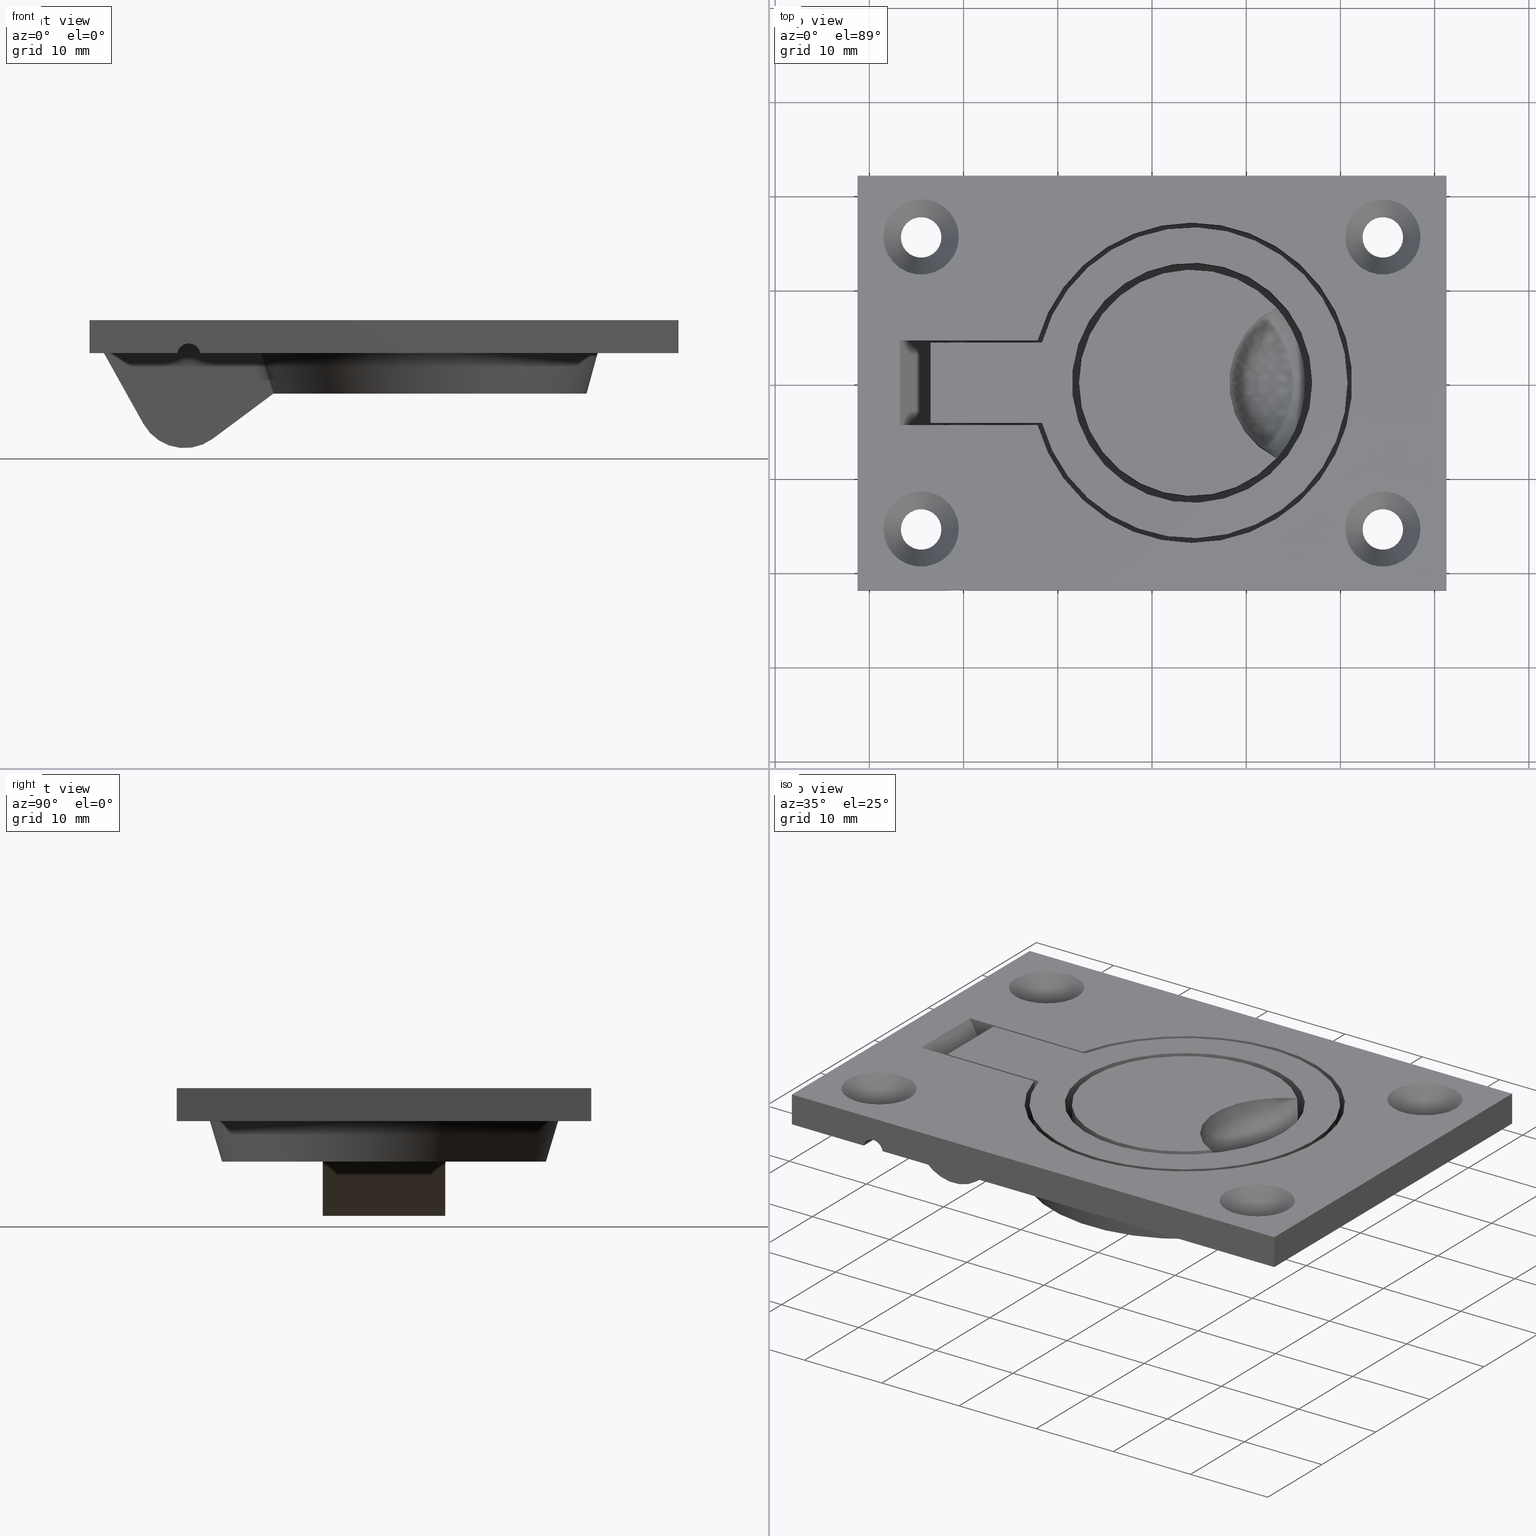
[diagram: canonical four-view strip — front | top / right | iso, engineering-drawing reading convention]
A machine part, canonical four-view strip (front | top / right | iso — engineering-drawing reading convention). The complete STEP part file that produces these views, byte-faithful:
ISO-10303-21;
HEADER;
/* Generated by software containing ST-Developer
 * from STEP Tools, Inc. (www.steptools.com) 
 */

FILE_DESCRIPTION(
/* description */ (''),
/* implementation_level */ '2;1');

FILE_NAME(
/* name */ '\\\\NAS\\db20\\A-MS316-3\\DR_A-MS316-3.stp',
/* time_stamp */ '2017-07-18T13:17:52+09:00',
/* author */ ('user'),
/* organization */ (''),
/* preprocessor_version */ 'ST-DEVELOPER v15.6',
/* originating_system */ 'Autodesk Inventor 2015',
/* authorisation */ '');

FILE_SCHEMA (('AUTOMOTIVE_DESIGN { 1 0 10303 214 3 1 1 }'));
ENDSEC;

DATA;
#10=MECHANICAL_DESIGN_GEOMETRIC_PRESENTATION_REPRESENTATION('',(#14,#15,
#16),#1370);
#11=ELLIPSE('',#834,26.2423795239014,20.2677319446985);
#12=SHAPE_REPRESENTATION_RELATIONSHIP('SRR','None',#1379,#13);
#13=ADVANCED_BREP_SHAPE_REPRESENTATION($,(#17,#18,#19),#1369);
#14=STYLED_ITEM('',(#1388),#17);
#15=STYLED_ITEM('',(#1388),#18);
#16=STYLED_ITEM('',(#1388),#19);
#17=MANIFOLD_SOLID_BREP('\X2\C194B9ACB4DC\X0\1',#764);
#18=MANIFOLD_SOLID_BREP('\X2\C194B9ACB4DC\X0\2',#765);
#19=MANIFOLD_SOLID_BREP('\X2\C194B9ACB4DC\X0\3',#766);
#20=(
BOUNDED_CURVE()
B_SPLINE_CURVE(2,(#1274,#1275,#1276),.UNSPECIFIED.,.F.,.F.)
B_SPLINE_CURVE_WITH_KNOTS((3,3),(0.,0.450455260846372),.UNSPECIFIED.)
CURVE()
GEOMETRIC_REPRESENTATION_ITEM()
RATIONAL_B_SPLINE_CURVE((1.,1.00070532080398,1.))
REPRESENTATION_ITEM('')
);
#21=(
BOUNDED_CURVE()
B_SPLINE_CURVE(2,(#1299,#1300,#1301),.UNSPECIFIED.,.F.,.F.)
B_SPLINE_CURVE_WITH_KNOTS((3,3),(0.,0.450455260846372),.UNSPECIFIED.)
CURVE()
GEOMETRIC_REPRESENTATION_ITEM()
RATIONAL_B_SPLINE_CURVE((1.,1.0007053207992,1.))
REPRESENTATION_ITEM('')
);
#22=(
BOUNDED_CURVE()
B_SPLINE_CURVE(2,(#1327,#1328,#1329),.UNSPECIFIED.,.F.,.F.)
B_SPLINE_CURVE_WITH_KNOTS((3,3),(0.,0.292124848595165),.UNSPECIFIED.)
CURVE()
GEOMETRIC_REPRESENTATION_ITEM()
RATIONAL_B_SPLINE_CURVE((1.,1.00096312354482,1.00082977396516))
REPRESENTATION_ITEM('')
);
#23=(
BOUNDED_CURVE()
B_SPLINE_CURVE(2,(#1345,#1346,#1347),.UNSPECIFIED.,.F.,.F.)
B_SPLINE_CURVE_WITH_KNOTS((3,3),(0.221070255649497,0.513195104244662),
 .UNSPECIFIED.)
CURVE()
GEOMETRIC_REPRESENTATION_ITEM()
RATIONAL_B_SPLINE_CURVE((1.00082977396516,1.00096312354482,1.))
REPRESENTATION_ITEM('')
);
#24=SPHERICAL_SURFACE('',#798,13.7779069767442);
#25=B_SPLINE_CURVE_WITH_KNOTS('',3,(#1157,#1158,#1159,#1160,#1161,#1162,
#1163,#1164,#1165,#1166,#1167,#1168,#1169,#1170,#1171,#1172,#1173,#1174,
#1175,#1176,#1177,#1178),.UNSPECIFIED.,.F.,.F.,(4,2,2,2,2,2,2,2,2,2,4),
(-0.00108928091295515,0.,0.162507191926981,0.325539082900519,0.65250393345308,
0.993488546076933,1.33447315870079,1.6614380092534,1.82446990022695,1.98697709215395,
1.98806637306688),.UNSPECIFIED.);
#26=B_SPLINE_CURVE_WITH_KNOTS('',3,(#1189,#1190,#1191,#1192,#1193,#1194,
#1195,#1196,#1197,#1198,#1199,#1200),.UNSPECIFIED.,.F.,.F.,(4,2,2,2,2,4),
(1.27906537034679,1.35564874410053,1.63746776703437,1.91928678996821,2.16576716136284,
2.41224753275747),.UNSPECIFIED.);
#27=B_SPLINE_CURVE_WITH_KNOTS('',3,(#1201,#1202,#1203,#1204,#1205,#1206,
#1207,#1208,#1209,#1210,#1211,#1212),.UNSPECIFIED.,.F.,.F.,(4,2,2,2,2,4),
(2.41259754843021,2.65909916029841,2.9056007721666,3.18744847210548,3.46929617204436,
3.54577790521519),.UNSPECIFIED.);
#28=(
BOUNDED_SURFACE()
B_SPLINE_SURFACE(2,2,((#1130,#1131,#1132,#1133,#1134),(#1135,#1136,#1137,
#1138,#1139),(#1140,#1141,#1142,#1143,#1144),(#1145,#1146,#1147,#1148,#1149),
(#1150,#1151,#1152,#1153,#1154)),.UNSPECIFIED.,.F.,.F.,.F.)
B_SPLINE_SURFACE_WITH_KNOTS((3,2,3),(3,2,3),(-1.11719863068712,0.,1.11719863068712),
(-1.5707963267949,-0.456644587660423,0.657507151474051),.UNSPECIFIED.)
GEOMETRIC_REPRESENTATION_ITEM()
RATIONAL_B_SPLINE_SURFACE(((1.,0.848804744285426,1.,0.848804744285426,1.),
(0.847998304005088,0.719784983585514,0.847998304005088,0.719784983585514,
0.847998304005088),(1.,0.848804744285426,1.,0.848804744285426,1.),(0.847998304005089,
0.719784983585514,0.847998304005089,0.719784983585514,0.847998304005089),
(1.,0.848804744285426,1.,0.848804744285426,1.)))
REPRESENTATION_ITEM('')
SURFACE()
);
#29=FACE_BOUND('',#138,.T.);
#30=FACE_BOUND('',#140,.T.);
#31=FACE_BOUND('',#142,.T.);
#32=FACE_BOUND('',#144,.T.);
#33=FACE_BOUND('',#146,.T.);
#34=FACE_BOUND('',#148,.T.);
#35=FACE_BOUND('',#150,.T.);
#36=FACE_BOUND('',#152,.T.);
#37=FACE_BOUND('',#159,.T.);
#38=FACE_BOUND('',#162,.T.);
#39=FACE_BOUND('',#170,.T.);
#40=FACE_BOUND('',#171,.T.);
#41=FACE_BOUND('',#172,.T.);
#42=FACE_BOUND('',#173,.T.);
#43=FACE_BOUND('',#174,.T.);
#44=FACE_BOUND('',#180,.T.);
#45=FACE_BOUND('',#183,.T.);
#46=FACE_BOUND('',#184,.T.);
#47=FACE_BOUND('',#185,.T.);
#48=FACE_BOUND('',#186,.T.);
#49=FACE_BOUND('',#197,.T.);
#50=FACE_BOUND('',#199,.T.);
#51=FACE_BOUND('',#201,.T.);
#52=FACE_BOUND('',#203,.T.);
#53=FACE_BOUND('',#205,.T.);
#54=CONICAL_SURFACE('',#772,3.075,30.);
#55=CONICAL_SURFACE('',#777,3.075,30.);
#56=CONICAL_SURFACE('',#782,3.075,30.);
#57=CONICAL_SURFACE('',#787,3.075,30.);
#58=CONICAL_SURFACE('',#799,11.125,27.6210749830755);
#59=CONICAL_SURFACE('',#829,17.875,16.209024927808);
#60=CONICAL_SURFACE('',#844,15.6264714377611,20.);
#61=PLANE('',#771);
#62=PLANE('',#793);
#63=PLANE('',#795);
#64=PLANE('',#806);
#65=PLANE('',#807);
#66=PLANE('',#810);
#67=PLANE('',#813);
#68=PLANE('',#815);
#69=PLANE('',#817);
#70=PLANE('',#818);
#71=PLANE('',#820);
#72=PLANE('',#823);
#73=PLANE('',#824);
#74=PLANE('',#826);
#75=PLANE('',#827);
#76=PLANE('',#830);
#77=PLANE('',#831);
#78=PLANE('',#832);
#79=PLANE('',#833);
#80=PLANE('',#835);
#81=PLANE('',#837);
#82=PLANE('',#840);
#83=PLANE('',#841);
#84=PLANE('',#846);
#85=PLANE('',#852);
#86=PLANE('',#853);
#87=FACE_OUTER_BOUND('',#135,.T.);
#88=FACE_OUTER_BOUND('',#136,.T.);
#89=FACE_OUTER_BOUND('',#137,.T.);
#90=FACE_OUTER_BOUND('',#139,.T.);
#91=FACE_OUTER_BOUND('',#141,.T.);
#92=FACE_OUTER_BOUND('',#143,.T.);
#93=FACE_OUTER_BOUND('',#145,.T.);
#94=FACE_OUTER_BOUND('',#147,.T.);
#95=FACE_OUTER_BOUND('',#149,.T.);
#96=FACE_OUTER_BOUND('',#151,.T.);
#97=FACE_OUTER_BOUND('',#153,.T.);
#98=FACE_OUTER_BOUND('',#154,.T.);
#99=FACE_OUTER_BOUND('',#155,.T.);
#100=FACE_OUTER_BOUND('',#156,.T.);
#101=FACE_OUTER_BOUND('',#157,.T.);
#102=FACE_OUTER_BOUND('',#158,.T.);
#103=FACE_OUTER_BOUND('',#160,.T.);
#104=FACE_OUTER_BOUND('',#161,.T.);
#105=FACE_OUTER_BOUND('',#163,.T.);
#106=FACE_OUTER_BOUND('',#164,.T.);
#107=FACE_OUTER_BOUND('',#165,.T.);
#108=FACE_OUTER_BOUND('',#166,.T.);
#109=FACE_OUTER_BOUND('',#167,.T.);
#110=FACE_OUTER_BOUND('',#168,.T.);
#111=FACE_OUTER_BOUND('',#169,.T.);
#112=FACE_OUTER_BOUND('',#175,.T.);
#113=FACE_OUTER_BOUND('',#176,.T.);
#114=FACE_OUTER_BOUND('',#177,.T.);
#115=FACE_OUTER_BOUND('',#178,.T.);
#116=FACE_OUTER_BOUND('',#179,.T.);
#117=FACE_OUTER_BOUND('',#181,.T.);
#118=FACE_OUTER_BOUND('',#182,.T.);
#119=FACE_OUTER_BOUND('',#187,.T.);
#120=FACE_OUTER_BOUND('',#188,.T.);
#121=FACE_OUTER_BOUND('',#189,.T.);
#122=FACE_OUTER_BOUND('',#190,.T.);
#123=FACE_OUTER_BOUND('',#191,.T.);
#124=FACE_OUTER_BOUND('',#192,.T.);
#125=FACE_OUTER_BOUND('',#193,.T.);
#126=FACE_OUTER_BOUND('',#194,.T.);
#127=FACE_OUTER_BOUND('',#195,.T.);
#128=FACE_OUTER_BOUND('',#196,.T.);
#129=FACE_OUTER_BOUND('',#198,.T.);
#130=FACE_OUTER_BOUND('',#200,.T.);
#131=FACE_OUTER_BOUND('',#202,.T.);
#132=FACE_OUTER_BOUND('',#204,.T.);
#133=FACE_OUTER_BOUND('',#206,.T.);
#134=FACE_OUTER_BOUND('',#207,.T.);
#135=EDGE_LOOP('',(#511,#512,#513,#514));
#136=EDGE_LOOP('',(#515,#516,#517,#518,#519,#520));
#137=EDGE_LOOP('',(#521));
#138=EDGE_LOOP('',(#522));
#139=EDGE_LOOP('',(#523));
#140=EDGE_LOOP('',(#524));
#141=EDGE_LOOP('',(#525));
#142=EDGE_LOOP('',(#526));
#143=EDGE_LOOP('',(#527));
#144=EDGE_LOOP('',(#528));
#145=EDGE_LOOP('',(#529));
#146=EDGE_LOOP('',(#530));
#147=EDGE_LOOP('',(#531));
#148=EDGE_LOOP('',(#532));
#149=EDGE_LOOP('',(#533));
#150=EDGE_LOOP('',(#534));
#151=EDGE_LOOP('',(#535));
#152=EDGE_LOOP('',(#536));
#153=EDGE_LOOP('',(#537,#538));
#154=EDGE_LOOP('',(#539,#540));
#155=EDGE_LOOP('',(#541,#542));
#156=EDGE_LOOP('',(#543,#544,#545));
#157=EDGE_LOOP('',(#546,#547,#548,#549));
#158=EDGE_LOOP('',(#550,#551));
#159=EDGE_LOOP('',(#552));
#160=EDGE_LOOP('',(#553,#554,#555,#556));
#161=EDGE_LOOP('',(#557,#558,#559,#560));
#162=EDGE_LOOP('',(#561));
#163=EDGE_LOOP('',(#562,#563,#564,#565,#566,#567,#568));
#164=EDGE_LOOP('',(#569,#570,#571,#572,#573,#574,#575));
#165=EDGE_LOOP('',(#576,#577,#578,#579));
#166=EDGE_LOOP('',(#580,#581,#582,#583));
#167=EDGE_LOOP('',(#584,#585,#586,#587));
#168=EDGE_LOOP('',(#588,#589,#590,#591));
#169=EDGE_LOOP('',(#592,#593,#594,#595));
#170=EDGE_LOOP('',(#596));
#171=EDGE_LOOP('',(#597));
#172=EDGE_LOOP('',(#598));
#173=EDGE_LOOP('',(#599));
#174=EDGE_LOOP('',(#600,#601,#602,#603));
#175=EDGE_LOOP('',(#604,#605,#606,#607,#608));
#176=EDGE_LOOP('',(#609,#610,#611,#612));
#177=EDGE_LOOP('',(#613,#614,#615,#616));
#178=EDGE_LOOP('',(#617,#618,#619,#620));
#179=EDGE_LOOP('',(#621,#622));
#180=EDGE_LOOP('',(#623));
#181=EDGE_LOOP('',(#624,#625,#626,#627,#628,#629,#630));
#182=EDGE_LOOP('',(#631,#632,#633,#634,#635,#636,#637,#638,#639,#640,#641,
#642));
#183=EDGE_LOOP('',(#643));
#184=EDGE_LOOP('',(#644));
#185=EDGE_LOOP('',(#645));
#186=EDGE_LOOP('',(#646));
#187=EDGE_LOOP('',(#647,#648,#649,#650));
#188=EDGE_LOOP('',(#651,#652,#653,#654));
#189=EDGE_LOOP('',(#655,#656,#657,#658));
#190=EDGE_LOOP('',(#659,#660,#661,#662));
#191=EDGE_LOOP('',(#663,#664,#665,#666));
#192=EDGE_LOOP('',(#667,#668,#669,#670,#671));
#193=EDGE_LOOP('',(#672,#673,#674,#675));
#194=EDGE_LOOP('',(#676,#677,#678,#679));
#195=EDGE_LOOP('',(#680,#681,#682,#683,#684));
#196=EDGE_LOOP('',(#685,#686,#687,#688));
#197=EDGE_LOOP('',(#689));
#198=EDGE_LOOP('',(#690,#691,#692,#693));
#199=EDGE_LOOP('',(#694));
#200=EDGE_LOOP('',(#695));
#201=EDGE_LOOP('',(#696));
#202=EDGE_LOOP('',(#697));
#203=EDGE_LOOP('',(#698));
#204=EDGE_LOOP('',(#699));
#205=EDGE_LOOP('',(#700));
#206=EDGE_LOOP('',(#701));
#207=EDGE_LOOP('',(#702));
#208=CIRCLE('',#769,1.25);
#209=CIRCLE('',#770,1.25);
#210=CIRCLE('',#773,4.);
#211=CIRCLE('',#774,2.15);
#212=CIRCLE('',#776,2.15);
#213=CIRCLE('',#778,4.);
#214=CIRCLE('',#779,2.15);
#215=CIRCLE('',#781,2.15);
#216=CIRCLE('',#783,4.);
#217=CIRCLE('',#784,2.15);
#218=CIRCLE('',#786,2.15);
#219=CIRCLE('',#788,4.);
#220=CIRCLE('',#789,2.15);
#221=CIRCLE('',#791,2.15);
#222=CIRCLE('',#792,8.9);
#223=CIRCLE('',#794,12.);
#224=CIRCLE('',#796,10.);
#225=CIRCLE('',#797,10.);
#226=CIRCLE('',#800,12.25);
#227=CIRCLE('',#802,12.);
#228=CIRCLE('',#804,17.);
#229=CIRCLE('',#805,17.);
#230=CIRCLE('',#808,3.);
#231=CIRCLE('',#809,0.999999999999991);
#232=CIRCLE('',#811,0.999999999999991);
#233=CIRCLE('',#812,3.);
#234=CIRCLE('',#819,4.99999999999999);
#235=CIRCLE('',#822,4.99999999999999);
#236=CIRCLE('',#825,17.25);
#237=CIRCLE('',#828,18.5);
#238=CIRCLE('',#836,3.);
#239=CIRCLE('',#839,3.);
#240=CIRCLE('',#842,16.5);
#241=CIRCLE('',#843,12.75);
#242=CIRCLE('',#845,14.7529428755222);
#243=CIRCLE('',#847,12.75);
#244=CIRCLE('',#850,1.25);
#245=CIRCLE('',#851,1.25);
#246=LINE('',#1082,#296);
#247=LINE('',#1086,#297);
#248=LINE('',#1090,#298);
#249=LINE('',#1092,#299);
#250=LINE('',#1094,#300);
#251=LINE('',#1096,#301);
#252=LINE('',#1097,#302);
#253=LINE('',#1223,#303);
#254=LINE('',#1226,#304);
#255=LINE('',#1229,#305);
#256=LINE('',#1231,#306);
#257=LINE('',#1232,#307);
#258=LINE('',#1235,#308);
#259=LINE('',#1237,#309);
#260=LINE('',#1241,#310);
#261=LINE('',#1247,#311);
#262=LINE('',#1251,#312);
#263=LINE('',#1252,#313);
#264=LINE('',#1254,#314);
#265=LINE('',#1255,#315);
#266=LINE('',#1257,#316);
#267=LINE('',#1259,#317);
#268=LINE('',#1263,#318);
#269=LINE('',#1265,#319);
#270=LINE('',#1266,#320);
#271=LINE('',#1270,#321);
#272=LINE('',#1272,#322);
#273=LINE('',#1278,#323);
#274=LINE('',#1282,#324);
#275=LINE('',#1284,#325);
#276=LINE('',#1285,#326);
#277=LINE('',#1288,#327);
#278=LINE('',#1292,#328);
#279=LINE('',#1293,#329);
#280=LINE('',#1297,#330);
#281=LINE('',#1302,#331);
#282=LINE('',#1305,#332);
#283=LINE('',#1307,#333);
#284=LINE('',#1308,#334);
#285=LINE('',#1312,#335);
#286=LINE('',#1314,#336);
#287=LINE('',#1321,#337);
#288=LINE('',#1323,#338);
#289=LINE('',#1324,#339);
#290=LINE('',#1331,#340);
#291=LINE('',#1333,#341);
#292=LINE('',#1337,#342);
#293=LINE('',#1339,#343);
#294=LINE('',#1340,#344);
#295=LINE('',#1348,#345);
#296=VECTOR('',#858,15.5);
#297=VECTOR('',#861,15.5);
#298=VECTOR('',#866,50.7537563098832);
#299=VECTOR('',#867,3.5);
#300=VECTOR('',#868,62.5);
#301=VECTOR('',#869,3.5);
#302=VECTOR('',#870,9.29675394733361);
#303=VECTOR('',#937,5.);
#304=VECTOR('',#940,5.);
#305=VECTOR('',#943,0.275208312618582);
#306=VECTOR('',#944,9.);
#307=VECTOR('',#945,0.275208312618582);
#308=VECTOR('',#948,14.606403689245);
#309=VECTOR('',#949,9.05498676257119);
#310=VECTOR('',#952,6.12006738243044);
#311=VECTOR('',#959,6.12006738243044);
#312=VECTOR('',#962,9.05498676257119);
#313=VECTOR('',#963,14.606403689245);
#314=VECTOR('',#966,9.);
#315=VECTOR('',#967,9.);
#316=VECTOR('',#970,9.);
#317=VECTOR('',#973,9.);
#318=VECTOR('',#978,44.);
#319=VECTOR('',#979,62.5);
#320=VECTOR('',#980,44.);
#321=VECTOR('',#983,8.61710675162532);
#322=VECTOR('',#984,16.657993105586);
#323=VECTOR('',#985,8.03835098315479);
#324=VECTOR('',#990,13.);
#325=VECTOR('',#991,8.61710675162532);
#326=VECTOR('',#992,13.);
#327=VECTOR('',#995,13.);
#328=VECTOR('',#1000,13.);
#329=VECTOR('',#1001,8.03835098315479);
#330=VECTOR('',#1008,7.77525512860841);
#331=VECTOR('',#1009,6.43324823419443);
#332=VECTOR('',#1012,44.);
#333=VECTOR('',#1013,62.5);
#334=VECTOR('',#1014,44.);
#335=VECTOR('',#1021,3.5);
#336=VECTOR('',#1024,3.5);
#337=VECTOR('',#1031,6.53190614235665);
#338=VECTOR('',#1032,8.5);
#339=VECTOR('',#1033,6.53190614235665);
#340=VECTOR('',#1036,11.8067412364975);
#341=VECTOR('',#1037,6.59409706104608);
#342=VECTOR('',#1042,8.5);
#343=VECTOR('',#1043,6.59409706104608);
#344=VECTOR('',#1044,8.5);
#345=VECTOR('',#1051,11.8067412364975);
#346=VERTEX_POINT('',#1080);
#347=VERTEX_POINT('',#1081);
#348=VERTEX_POINT('',#1083);
#349=VERTEX_POINT('',#1085);
#350=VERTEX_POINT('',#1089);
#351=VERTEX_POINT('',#1091);
#352=VERTEX_POINT('',#1093);
#353=VERTEX_POINT('',#1095);
#354=VERTEX_POINT('',#1099);
#355=VERTEX_POINT('',#1101);
#356=VERTEX_POINT('',#1104);
#357=VERTEX_POINT('',#1107);
#358=VERTEX_POINT('',#1109);
#359=VERTEX_POINT('',#1112);
#360=VERTEX_POINT('',#1115);
#361=VERTEX_POINT('',#1117);
#362=VERTEX_POINT('',#1120);
#363=VERTEX_POINT('',#1123);
#364=VERTEX_POINT('',#1125);
#365=VERTEX_POINT('',#1128);
#366=VERTEX_POINT('',#1155);
#367=VERTEX_POINT('',#1156);
#368=VERTEX_POINT('',#1183);
#369=VERTEX_POINT('',#1184);
#370=VERTEX_POINT('',#1188);
#371=VERTEX_POINT('',#1216);
#372=VERTEX_POINT('',#1219);
#373=VERTEX_POINT('',#1220);
#374=VERTEX_POINT('',#1222);
#375=VERTEX_POINT('',#1224);
#376=VERTEX_POINT('',#1228);
#377=VERTEX_POINT('',#1230);
#378=VERTEX_POINT('',#1234);
#379=VERTEX_POINT('',#1236);
#380=VERTEX_POINT('',#1238);
#381=VERTEX_POINT('',#1240);
#382=VERTEX_POINT('',#1244);
#383=VERTEX_POINT('',#1246);
#384=VERTEX_POINT('',#1248);
#385=VERTEX_POINT('',#1250);
#386=VERTEX_POINT('',#1262);
#387=VERTEX_POINT('',#1264);
#388=VERTEX_POINT('',#1268);
#389=VERTEX_POINT('',#1269);
#390=VERTEX_POINT('',#1271);
#391=VERTEX_POINT('',#1273);
#392=VERTEX_POINT('',#1277);
#393=VERTEX_POINT('',#1281);
#394=VERTEX_POINT('',#1283);
#395=VERTEX_POINT('',#1287);
#396=VERTEX_POINT('',#1291);
#397=VERTEX_POINT('',#1298);
#398=VERTEX_POINT('',#1304);
#399=VERTEX_POINT('',#1306);
#400=VERTEX_POINT('',#1317);
#401=VERTEX_POINT('',#1318);
#402=VERTEX_POINT('',#1320);
#403=VERTEX_POINT('',#1322);
#404=VERTEX_POINT('',#1326);
#405=VERTEX_POINT('',#1330);
#406=VERTEX_POINT('',#1332);
#407=VERTEX_POINT('',#1336);
#408=VERTEX_POINT('',#1338);
#409=VERTEX_POINT('',#1344);
#410=VERTEX_POINT('',#1351);
#411=VERTEX_POINT('',#1354);
#412=VERTEX_POINT('',#1357);
#413=VERTEX_POINT('',#1361);
#414=VERTEX_POINT('',#1363);
#415=EDGE_CURVE('',#346,#347,#246,.T.);
#416=EDGE_CURVE('',#346,#348,#208,.T.);
#417=EDGE_CURVE('',#349,#348,#247,.T.);
#418=EDGE_CURVE('',#347,#349,#209,.T.);
#419=EDGE_CURVE('',#349,#350,#248,.T.);
#420=EDGE_CURVE('',#350,#351,#249,.T.);
#421=EDGE_CURVE('',#352,#351,#250,.T.);
#422=EDGE_CURVE('',#353,#352,#251,.T.);
#423=EDGE_CURVE('',#353,#347,#252,.T.);
#424=EDGE_CURVE('',#354,#354,#210,.T.);
#425=EDGE_CURVE('',#355,#355,#211,.T.);
#426=EDGE_CURVE('',#356,#356,#212,.T.);
#427=EDGE_CURVE('',#357,#357,#213,.T.);
#428=EDGE_CURVE('',#358,#358,#214,.T.);
#429=EDGE_CURVE('',#359,#359,#215,.T.);
#430=EDGE_CURVE('',#360,#360,#216,.T.);
#431=EDGE_CURVE('',#361,#361,#217,.T.);
#432=EDGE_CURVE('',#362,#362,#218,.T.);
#433=EDGE_CURVE('',#363,#363,#219,.T.);
#434=EDGE_CURVE('',#364,#364,#220,.T.);
#435=EDGE_CURVE('',#365,#365,#221,.T.);
#436=EDGE_CURVE('',#366,#367,#25,.T.);
#437=EDGE_CURVE('',#367,#366,#222,.T.);
#438=EDGE_CURVE('',#366,#367,#223,.T.);
#439=EDGE_CURVE('',#368,#369,#224,.T.);
#440=EDGE_CURVE('',#369,#368,#225,.T.);
#441=EDGE_CURVE('',#369,#370,#26,.T.);
#442=EDGE_CURVE('',#370,#368,#27,.T.);
#443=EDGE_CURVE('',#370,#370,#226,.T.);
#444=EDGE_CURVE('',#371,#371,#227,.T.);
#445=EDGE_CURVE('',#372,#373,#228,.T.);
#446=EDGE_CURVE('',#373,#374,#253,.T.);
#447=EDGE_CURVE('',#375,#374,#229,.T.);
#448=EDGE_CURVE('',#375,#372,#254,.T.);
#449=EDGE_CURVE('',#372,#376,#255,.T.);
#450=EDGE_CURVE('',#376,#377,#256,.T.);
#451=EDGE_CURVE('',#377,#373,#257,.T.);
#452=EDGE_CURVE('',#378,#375,#258,.T.);
#453=EDGE_CURVE('',#379,#378,#259,.T.);
#454=EDGE_CURVE('',#380,#379,#230,.T.);
#455=EDGE_CURVE('',#381,#380,#260,.T.);
#456=EDGE_CURVE('',#376,#381,#231,.T.);
#457=EDGE_CURVE('',#382,#377,#232,.T.);
#458=EDGE_CURVE('',#383,#382,#261,.T.);
#459=EDGE_CURVE('',#384,#383,#233,.T.);
#460=EDGE_CURVE('',#385,#384,#262,.T.);
#461=EDGE_CURVE('',#374,#385,#263,.T.);
#462=EDGE_CURVE('',#385,#378,#264,.T.);
#463=EDGE_CURVE('',#384,#379,#265,.T.);
#464=EDGE_CURVE('',#383,#380,#266,.T.);
#465=EDGE_CURVE('',#382,#381,#267,.T.);
#466=EDGE_CURVE('',#351,#386,#268,.T.);
#467=EDGE_CURVE('',#386,#387,#269,.T.);
#468=EDGE_CURVE('',#387,#352,#270,.T.);
#469=EDGE_CURVE('',#388,#389,#271,.T.);
#470=EDGE_CURVE('',#390,#389,#272,.T.);
#471=EDGE_CURVE('',#391,#390,#20,.T.);
#472=EDGE_CURVE('',#391,#392,#273,.T.);
#473=EDGE_CURVE('',#392,#388,#234,.T.);
#474=EDGE_CURVE('',#393,#388,#274,.T.);
#475=EDGE_CURVE('',#394,#393,#275,.T.);
#476=EDGE_CURVE('',#389,#394,#276,.T.);
#477=EDGE_CURVE('',#395,#392,#277,.T.);
#478=EDGE_CURVE('',#393,#395,#235,.T.);
#479=EDGE_CURVE('',#396,#391,#278,.T.);
#480=EDGE_CURVE('',#395,#396,#279,.T.);
#481=EDGE_CURVE('',#396,#391,#236,.T.);
#482=EDGE_CURVE('',#394,#346,#280,.T.);
#483=EDGE_CURVE('',#397,#396,#21,.T.);
#484=EDGE_CURVE('',#348,#397,#281,.T.);
#485=EDGE_CURVE('',#398,#353,#282,.T.);
#486=EDGE_CURVE('',#399,#398,#283,.T.);
#487=EDGE_CURVE('',#350,#399,#284,.T.);
#488=EDGE_CURVE('',#397,#390,#237,.T.);
#489=EDGE_CURVE('',#398,#387,#285,.T.);
#490=EDGE_CURVE('',#399,#386,#286,.T.);
#491=EDGE_CURVE('',#400,#401,#11,.T.);
#492=EDGE_CURVE('',#402,#400,#287,.T.);
#493=EDGE_CURVE('',#402,#403,#288,.T.);
#494=EDGE_CURVE('',#401,#403,#289,.T.);
#495=EDGE_CURVE('',#404,#400,#22,.T.);
#496=EDGE_CURVE('',#404,#405,#290,.T.);
#497=EDGE_CURVE('',#405,#406,#291,.T.);
#498=EDGE_CURVE('',#406,#402,#238,.T.);
#499=EDGE_CURVE('',#405,#407,#292,.T.);
#500=EDGE_CURVE('',#408,#407,#293,.T.);
#501=EDGE_CURVE('',#406,#408,#294,.T.);
#502=EDGE_CURVE('',#403,#408,#239,.T.);
#503=EDGE_CURVE('',#401,#409,#23,.T.);
#504=EDGE_CURVE('',#407,#409,#295,.T.);
#505=EDGE_CURVE('',#409,#404,#240,.T.);
#506=EDGE_CURVE('',#410,#410,#241,.T.);
#507=EDGE_CURVE('',#411,#411,#242,.T.);
#508=EDGE_CURVE('',#412,#412,#243,.T.);
#509=EDGE_CURVE('',#413,#413,#244,.T.);
#510=EDGE_CURVE('',#414,#414,#245,.T.);
#511=ORIENTED_EDGE('',*,*,#415,.F.);
#512=ORIENTED_EDGE('',*,*,#416,.T.);
#513=ORIENTED_EDGE('',*,*,#417,.F.);
#514=ORIENTED_EDGE('',*,*,#418,.F.);
#515=ORIENTED_EDGE('',*,*,#418,.T.);
#516=ORIENTED_EDGE('',*,*,#419,.T.);
#517=ORIENTED_EDGE('',*,*,#420,.T.);
#518=ORIENTED_EDGE('',*,*,#421,.F.);
#519=ORIENTED_EDGE('',*,*,#422,.F.);
#520=ORIENTED_EDGE('',*,*,#423,.T.);
#521=ORIENTED_EDGE('',*,*,#424,.F.);
#522=ORIENTED_EDGE('',*,*,#425,.F.);
#523=ORIENTED_EDGE('',*,*,#426,.F.);
#524=ORIENTED_EDGE('',*,*,#425,.T.);
#525=ORIENTED_EDGE('',*,*,#427,.F.);
#526=ORIENTED_EDGE('',*,*,#428,.F.);
#527=ORIENTED_EDGE('',*,*,#429,.F.);
#528=ORIENTED_EDGE('',*,*,#428,.T.);
#529=ORIENTED_EDGE('',*,*,#430,.F.);
#530=ORIENTED_EDGE('',*,*,#431,.F.);
#531=ORIENTED_EDGE('',*,*,#432,.F.);
#532=ORIENTED_EDGE('',*,*,#431,.T.);
#533=ORIENTED_EDGE('',*,*,#433,.F.);
#534=ORIENTED_EDGE('',*,*,#434,.F.);
#535=ORIENTED_EDGE('',*,*,#435,.F.);
#536=ORIENTED_EDGE('',*,*,#434,.T.);
#537=ORIENTED_EDGE('',*,*,#436,.F.);
#538=ORIENTED_EDGE('',*,*,#437,.F.);
#539=ORIENTED_EDGE('',*,*,#437,.T.);
#540=ORIENTED_EDGE('',*,*,#438,.T.);
#541=ORIENTED_EDGE('',*,*,#439,.T.);
#542=ORIENTED_EDGE('',*,*,#440,.T.);
#543=ORIENTED_EDGE('',*,*,#441,.F.);
#544=ORIENTED_EDGE('',*,*,#439,.F.);
#545=ORIENTED_EDGE('',*,*,#442,.F.);
#546=ORIENTED_EDGE('',*,*,#442,.T.);
#547=ORIENTED_EDGE('',*,*,#440,.F.);
#548=ORIENTED_EDGE('',*,*,#441,.T.);
#549=ORIENTED_EDGE('',*,*,#443,.F.);
#550=ORIENTED_EDGE('',*,*,#436,.T.);
#551=ORIENTED_EDGE('',*,*,#438,.F.);
#552=ORIENTED_EDGE('',*,*,#444,.T.);
#553=ORIENTED_EDGE('',*,*,#445,.T.);
#554=ORIENTED_EDGE('',*,*,#446,.T.);
#555=ORIENTED_EDGE('',*,*,#447,.F.);
#556=ORIENTED_EDGE('',*,*,#448,.T.);
#557=ORIENTED_EDGE('',*,*,#445,.F.);
#558=ORIENTED_EDGE('',*,*,#449,.T.);
#559=ORIENTED_EDGE('',*,*,#450,.T.);
#560=ORIENTED_EDGE('',*,*,#451,.T.);
#561=ORIENTED_EDGE('',*,*,#444,.F.);
#562=ORIENTED_EDGE('',*,*,#448,.F.);
#563=ORIENTED_EDGE('',*,*,#452,.F.);
#564=ORIENTED_EDGE('',*,*,#453,.F.);
#565=ORIENTED_EDGE('',*,*,#454,.F.);
#566=ORIENTED_EDGE('',*,*,#455,.F.);
#567=ORIENTED_EDGE('',*,*,#456,.F.);
#568=ORIENTED_EDGE('',*,*,#449,.F.);
#569=ORIENTED_EDGE('',*,*,#446,.F.);
#570=ORIENTED_EDGE('',*,*,#451,.F.);
#571=ORIENTED_EDGE('',*,*,#457,.F.);
#572=ORIENTED_EDGE('',*,*,#458,.F.);
#573=ORIENTED_EDGE('',*,*,#459,.F.);
#574=ORIENTED_EDGE('',*,*,#460,.F.);
#575=ORIENTED_EDGE('',*,*,#461,.F.);
#576=ORIENTED_EDGE('',*,*,#462,.F.);
#577=ORIENTED_EDGE('',*,*,#460,.T.);
#578=ORIENTED_EDGE('',*,*,#463,.T.);
#579=ORIENTED_EDGE('',*,*,#453,.T.);
#580=ORIENTED_EDGE('',*,*,#463,.F.);
#581=ORIENTED_EDGE('',*,*,#459,.T.);
#582=ORIENTED_EDGE('',*,*,#464,.T.);
#583=ORIENTED_EDGE('',*,*,#454,.T.);
#584=ORIENTED_EDGE('',*,*,#464,.F.);
#585=ORIENTED_EDGE('',*,*,#458,.T.);
#586=ORIENTED_EDGE('',*,*,#465,.T.);
#587=ORIENTED_EDGE('',*,*,#455,.T.);
#588=ORIENTED_EDGE('',*,*,#465,.F.);
#589=ORIENTED_EDGE('',*,*,#457,.T.);
#590=ORIENTED_EDGE('',*,*,#450,.F.);
#591=ORIENTED_EDGE('',*,*,#456,.T.);
#592=ORIENTED_EDGE('',*,*,#421,.T.);
#593=ORIENTED_EDGE('',*,*,#466,.T.);
#594=ORIENTED_EDGE('',*,*,#467,.T.);
#595=ORIENTED_EDGE('',*,*,#468,.T.);
#596=ORIENTED_EDGE('',*,*,#424,.T.);
#597=ORIENTED_EDGE('',*,*,#427,.T.);
#598=ORIENTED_EDGE('',*,*,#430,.T.);
#599=ORIENTED_EDGE('',*,*,#433,.T.);
#600=ORIENTED_EDGE('',*,*,#461,.T.);
#601=ORIENTED_EDGE('',*,*,#462,.T.);
#602=ORIENTED_EDGE('',*,*,#452,.T.);
#603=ORIENTED_EDGE('',*,*,#447,.T.);
#604=ORIENTED_EDGE('',*,*,#469,.T.);
#605=ORIENTED_EDGE('',*,*,#470,.F.);
#606=ORIENTED_EDGE('',*,*,#471,.F.);
#607=ORIENTED_EDGE('',*,*,#472,.T.);
#608=ORIENTED_EDGE('',*,*,#473,.T.);
#609=ORIENTED_EDGE('',*,*,#469,.F.);
#610=ORIENTED_EDGE('',*,*,#474,.F.);
#611=ORIENTED_EDGE('',*,*,#475,.F.);
#612=ORIENTED_EDGE('',*,*,#476,.F.);
#613=ORIENTED_EDGE('',*,*,#474,.T.);
#614=ORIENTED_EDGE('',*,*,#473,.F.);
#615=ORIENTED_EDGE('',*,*,#477,.F.);
#616=ORIENTED_EDGE('',*,*,#478,.F.);
#617=ORIENTED_EDGE('',*,*,#477,.T.);
#618=ORIENTED_EDGE('',*,*,#472,.F.);
#619=ORIENTED_EDGE('',*,*,#479,.F.);
#620=ORIENTED_EDGE('',*,*,#480,.F.);
#621=ORIENTED_EDGE('',*,*,#479,.T.);
#622=ORIENTED_EDGE('',*,*,#481,.F.);
#623=ORIENTED_EDGE('',*,*,#443,.T.);
#624=ORIENTED_EDGE('',*,*,#482,.F.);
#625=ORIENTED_EDGE('',*,*,#475,.T.);
#626=ORIENTED_EDGE('',*,*,#478,.T.);
#627=ORIENTED_EDGE('',*,*,#480,.T.);
#628=ORIENTED_EDGE('',*,*,#483,.F.);
#629=ORIENTED_EDGE('',*,*,#484,.F.);
#630=ORIENTED_EDGE('',*,*,#416,.F.);
#631=ORIENTED_EDGE('',*,*,#415,.T.);
#632=ORIENTED_EDGE('',*,*,#423,.F.);
#633=ORIENTED_EDGE('',*,*,#485,.F.);
#634=ORIENTED_EDGE('',*,*,#486,.F.);
#635=ORIENTED_EDGE('',*,*,#487,.F.);
#636=ORIENTED_EDGE('',*,*,#419,.F.);
#637=ORIENTED_EDGE('',*,*,#417,.T.);
#638=ORIENTED_EDGE('',*,*,#484,.T.);
#639=ORIENTED_EDGE('',*,*,#488,.T.);
#640=ORIENTED_EDGE('',*,*,#470,.T.);
#641=ORIENTED_EDGE('',*,*,#476,.T.);
#642=ORIENTED_EDGE('',*,*,#482,.T.);
#643=ORIENTED_EDGE('',*,*,#426,.T.);
#644=ORIENTED_EDGE('',*,*,#429,.T.);
#645=ORIENTED_EDGE('',*,*,#432,.T.);
#646=ORIENTED_EDGE('',*,*,#435,.T.);
#647=ORIENTED_EDGE('',*,*,#488,.F.);
#648=ORIENTED_EDGE('',*,*,#483,.T.);
#649=ORIENTED_EDGE('',*,*,#481,.T.);
#650=ORIENTED_EDGE('',*,*,#471,.T.);
#651=ORIENTED_EDGE('',*,*,#485,.T.);
#652=ORIENTED_EDGE('',*,*,#422,.T.);
#653=ORIENTED_EDGE('',*,*,#468,.F.);
#654=ORIENTED_EDGE('',*,*,#489,.F.);
#655=ORIENTED_EDGE('',*,*,#486,.T.);
#656=ORIENTED_EDGE('',*,*,#489,.T.);
#657=ORIENTED_EDGE('',*,*,#467,.F.);
#658=ORIENTED_EDGE('',*,*,#490,.F.);
#659=ORIENTED_EDGE('',*,*,#487,.T.);
#660=ORIENTED_EDGE('',*,*,#490,.T.);
#661=ORIENTED_EDGE('',*,*,#466,.F.);
#662=ORIENTED_EDGE('',*,*,#420,.F.);
#663=ORIENTED_EDGE('',*,*,#491,.F.);
#664=ORIENTED_EDGE('',*,*,#492,.F.);
#665=ORIENTED_EDGE('',*,*,#493,.T.);
#666=ORIENTED_EDGE('',*,*,#494,.F.);
#667=ORIENTED_EDGE('',*,*,#495,.F.);
#668=ORIENTED_EDGE('',*,*,#496,.T.);
#669=ORIENTED_EDGE('',*,*,#497,.T.);
#670=ORIENTED_EDGE('',*,*,#498,.T.);
#671=ORIENTED_EDGE('',*,*,#492,.T.);
#672=ORIENTED_EDGE('',*,*,#499,.T.);
#673=ORIENTED_EDGE('',*,*,#500,.F.);
#674=ORIENTED_EDGE('',*,*,#501,.F.);
#675=ORIENTED_EDGE('',*,*,#497,.F.);
#676=ORIENTED_EDGE('',*,*,#501,.T.);
#677=ORIENTED_EDGE('',*,*,#502,.F.);
#678=ORIENTED_EDGE('',*,*,#493,.F.);
#679=ORIENTED_EDGE('',*,*,#498,.F.);
#680=ORIENTED_EDGE('',*,*,#503,.F.);
#681=ORIENTED_EDGE('',*,*,#494,.T.);
#682=ORIENTED_EDGE('',*,*,#502,.T.);
#683=ORIENTED_EDGE('',*,*,#500,.T.);
#684=ORIENTED_EDGE('',*,*,#504,.T.);
#685=ORIENTED_EDGE('',*,*,#505,.F.);
#686=ORIENTED_EDGE('',*,*,#504,.F.);
#687=ORIENTED_EDGE('',*,*,#499,.F.);
#688=ORIENTED_EDGE('',*,*,#496,.F.);
#689=ORIENTED_EDGE('',*,*,#506,.T.);
#690=ORIENTED_EDGE('',*,*,#503,.T.);
#691=ORIENTED_EDGE('',*,*,#505,.T.);
#692=ORIENTED_EDGE('',*,*,#495,.T.);
#693=ORIENTED_EDGE('',*,*,#491,.T.);
#694=ORIENTED_EDGE('',*,*,#507,.T.);
#695=ORIENTED_EDGE('',*,*,#507,.F.);
#696=ORIENTED_EDGE('',*,*,#508,.T.);
#697=ORIENTED_EDGE('',*,*,#508,.F.);
#698=ORIENTED_EDGE('',*,*,#506,.F.);
#699=ORIENTED_EDGE('',*,*,#509,.T.);
#700=ORIENTED_EDGE('',*,*,#510,.T.);
#701=ORIENTED_EDGE('',*,*,#510,.F.);
#702=ORIENTED_EDGE('',*,*,#509,.F.);
#703=CYLINDRICAL_SURFACE('',#768,1.25);
#704=CYLINDRICAL_SURFACE('',#775,2.15);
#705=CYLINDRICAL_SURFACE('',#780,2.15);
#706=CYLINDRICAL_SURFACE('',#785,2.15);
#707=CYLINDRICAL_SURFACE('',#790,2.15);
#708=CYLINDRICAL_SURFACE('',#801,12.);
#709=CYLINDRICAL_SURFACE('',#803,17.);
#710=CYLINDRICAL_SURFACE('',#814,3.);
#711=CYLINDRICAL_SURFACE('',#816,0.999999999999991);
#712=CYLINDRICAL_SURFACE('',#821,4.99999999999999);
#713=CYLINDRICAL_SURFACE('',#838,3.);
#714=CYLINDRICAL_SURFACE('',#848,12.75);
#715=CYLINDRICAL_SURFACE('',#849,1.25);
#716=ADVANCED_FACE('',(#87),#703,.F.);
#717=ADVANCED_FACE('',(#88),#61,.T.);
#718=ADVANCED_FACE('',(#89,#29),#54,.F.);
#719=ADVANCED_FACE('',(#90,#30),#704,.F.);
#720=ADVANCED_FACE('',(#91,#31),#55,.F.);
#721=ADVANCED_FACE('',(#92,#32),#705,.F.);
#722=ADVANCED_FACE('',(#93,#33),#56,.F.);
#723=ADVANCED_FACE('',(#94,#34),#706,.F.);
#724=ADVANCED_FACE('',(#95,#35),#57,.F.);
#725=ADVANCED_FACE('',(#96,#36),#707,.F.);
#726=ADVANCED_FACE('',(#97),#28,.T.);
#727=ADVANCED_FACE('',(#98),#62,.T.);
#728=ADVANCED_FACE('',(#99),#63,.F.);
#729=ADVANCED_FACE('',(#100),#24,.T.);
#730=ADVANCED_FACE('',(#101),#58,.F.);
#731=ADVANCED_FACE('',(#102,#37),#708,.T.);
#732=ADVANCED_FACE('',(#103),#709,.F.);
#733=ADVANCED_FACE('',(#104,#38),#64,.T.);
#734=ADVANCED_FACE('',(#105),#65,.T.);
#735=ADVANCED_FACE('',(#106),#66,.F.);
#736=ADVANCED_FACE('',(#107),#67,.F.);
#737=ADVANCED_FACE('',(#108),#710,.F.);
#738=ADVANCED_FACE('',(#109),#68,.F.);
#739=ADVANCED_FACE('',(#110),#711,.T.);
#740=ADVANCED_FACE('',(#111,#39,#40,#41,#42,#43),#69,.T.);
#741=ADVANCED_FACE('',(#112),#70,.T.);
#742=ADVANCED_FACE('',(#113),#71,.T.);
#743=ADVANCED_FACE('',(#114),#712,.T.);
#744=ADVANCED_FACE('',(#115),#72,.T.);
#745=ADVANCED_FACE('',(#116,#44),#73,.T.);
#746=ADVANCED_FACE('',(#117),#74,.T.);
#747=ADVANCED_FACE('',(#118,#45,#46,#47,#48),#75,.F.);
#748=ADVANCED_FACE('',(#119),#59,.T.);
#749=ADVANCED_FACE('',(#120),#76,.T.);
#750=ADVANCED_FACE('',(#121),#77,.T.);
#751=ADVANCED_FACE('',(#122),#78,.T.);
#752=ADVANCED_FACE('',(#123),#79,.T.);
#753=ADVANCED_FACE('',(#124),#80,.F.);
#754=ADVANCED_FACE('',(#125),#81,.T.);
#755=ADVANCED_FACE('',(#126),#713,.T.);
#756=ADVANCED_FACE('',(#127),#82,.T.);
#757=ADVANCED_FACE('',(#128,#49),#83,.T.);
#758=ADVANCED_FACE('',(#129,#50),#60,.T.);
#759=ADVANCED_FACE('',(#130,#51),#84,.F.);
#760=ADVANCED_FACE('',(#131,#52),#714,.F.);
#761=ADVANCED_FACE('',(#132,#53),#715,.T.);
#762=ADVANCED_FACE('',(#133),#85,.F.);
#763=ADVANCED_FACE('',(#134),#86,.T.);
#764=CLOSED_SHELL('',(#716,#717,#718,#719,#720,#721,#722,#723,#724,#725,
#726,#727,#728,#729,#730,#731,#732,#733,#734,#735,#736,#737,#738,#739,#740,
#741,#742,#743,#744,#745,#746,#747,#748,#749,#750,#751));
#765=CLOSED_SHELL('',(#752,#753,#754,#755,#756,#757,#758,#759,#760));
#766=CLOSED_SHELL('',(#761,#762,#763));
#767=AXIS2_PLACEMENT_3D('placement',#1078,#854,#855);
#768=AXIS2_PLACEMENT_3D('',#1079,#856,#857);
#769=AXIS2_PLACEMENT_3D('',#1084,#859,#860);
#770=AXIS2_PLACEMENT_3D('',#1087,#862,#863);
#771=AXIS2_PLACEMENT_3D('',#1088,#864,#865);
#772=AXIS2_PLACEMENT_3D('',#1098,#871,#872);
#773=AXIS2_PLACEMENT_3D('',#1100,#873,#874);
#774=AXIS2_PLACEMENT_3D('',#1102,#875,#876);
#775=AXIS2_PLACEMENT_3D('',#1103,#877,#878);
#776=AXIS2_PLACEMENT_3D('',#1105,#879,#880);
#777=AXIS2_PLACEMENT_3D('',#1106,#881,#882);
#778=AXIS2_PLACEMENT_3D('',#1108,#883,#884);
#779=AXIS2_PLACEMENT_3D('',#1110,#885,#886);
#780=AXIS2_PLACEMENT_3D('',#1111,#887,#888);
#781=AXIS2_PLACEMENT_3D('',#1113,#889,#890);
#782=AXIS2_PLACEMENT_3D('',#1114,#891,#892);
#783=AXIS2_PLACEMENT_3D('',#1116,#893,#894);
#784=AXIS2_PLACEMENT_3D('',#1118,#895,#896);
#785=AXIS2_PLACEMENT_3D('',#1119,#897,#898);
#786=AXIS2_PLACEMENT_3D('',#1121,#899,#900);
#787=AXIS2_PLACEMENT_3D('',#1122,#901,#902);
#788=AXIS2_PLACEMENT_3D('',#1124,#903,#904);
#789=AXIS2_PLACEMENT_3D('',#1126,#905,#906);
#790=AXIS2_PLACEMENT_3D('',#1127,#907,#908);
#791=AXIS2_PLACEMENT_3D('',#1129,#909,#910);
#792=AXIS2_PLACEMENT_3D('',#1179,#911,#912);
#793=AXIS2_PLACEMENT_3D('',#1180,#913,#914);
#794=AXIS2_PLACEMENT_3D('',#1181,#915,#916);
#795=AXIS2_PLACEMENT_3D('',#1182,#917,#918);
#796=AXIS2_PLACEMENT_3D('',#1185,#919,#920);
#797=AXIS2_PLACEMENT_3D('',#1186,#921,#922);
#798=AXIS2_PLACEMENT_3D('',#1187,#923,#924);
#799=AXIS2_PLACEMENT_3D('',#1213,#925,#926);
#800=AXIS2_PLACEMENT_3D('',#1214,#927,#928);
#801=AXIS2_PLACEMENT_3D('',#1215,#929,#930);
#802=AXIS2_PLACEMENT_3D('',#1217,#931,#932);
#803=AXIS2_PLACEMENT_3D('',#1218,#933,#934);
#804=AXIS2_PLACEMENT_3D('',#1221,#935,#936);
#805=AXIS2_PLACEMENT_3D('',#1225,#938,#939);
#806=AXIS2_PLACEMENT_3D('',#1227,#941,#942);
#807=AXIS2_PLACEMENT_3D('',#1233,#946,#947);
#808=AXIS2_PLACEMENT_3D('',#1239,#950,#951);
#809=AXIS2_PLACEMENT_3D('',#1242,#953,#954);
#810=AXIS2_PLACEMENT_3D('',#1243,#955,#956);
#811=AXIS2_PLACEMENT_3D('',#1245,#957,#958);
#812=AXIS2_PLACEMENT_3D('',#1249,#960,#961);
#813=AXIS2_PLACEMENT_3D('',#1253,#964,#965);
#814=AXIS2_PLACEMENT_3D('',#1256,#968,#969);
#815=AXIS2_PLACEMENT_3D('',#1258,#971,#972);
#816=AXIS2_PLACEMENT_3D('',#1260,#974,#975);
#817=AXIS2_PLACEMENT_3D('',#1261,#976,#977);
#818=AXIS2_PLACEMENT_3D('',#1267,#981,#982);
#819=AXIS2_PLACEMENT_3D('',#1279,#986,#987);
#820=AXIS2_PLACEMENT_3D('',#1280,#988,#989);
#821=AXIS2_PLACEMENT_3D('',#1286,#993,#994);
#822=AXIS2_PLACEMENT_3D('',#1289,#996,#997);
#823=AXIS2_PLACEMENT_3D('',#1290,#998,#999);
#824=AXIS2_PLACEMENT_3D('',#1294,#1002,#1003);
#825=AXIS2_PLACEMENT_3D('',#1295,#1004,#1005);
#826=AXIS2_PLACEMENT_3D('',#1296,#1006,#1007);
#827=AXIS2_PLACEMENT_3D('',#1303,#1010,#1011);
#828=AXIS2_PLACEMENT_3D('',#1309,#1015,#1016);
#829=AXIS2_PLACEMENT_3D('',#1310,#1017,#1018);
#830=AXIS2_PLACEMENT_3D('',#1311,#1019,#1020);
#831=AXIS2_PLACEMENT_3D('',#1313,#1022,#1023);
#832=AXIS2_PLACEMENT_3D('',#1315,#1025,#1026);
#833=AXIS2_PLACEMENT_3D('',#1316,#1027,#1028);
#834=AXIS2_PLACEMENT_3D('',#1319,#1029,#1030);
#835=AXIS2_PLACEMENT_3D('',#1325,#1034,#1035);
#836=AXIS2_PLACEMENT_3D('',#1334,#1038,#1039);
#837=AXIS2_PLACEMENT_3D('',#1335,#1040,#1041);
#838=AXIS2_PLACEMENT_3D('',#1341,#1045,#1046);
#839=AXIS2_PLACEMENT_3D('',#1342,#1047,#1048);
#840=AXIS2_PLACEMENT_3D('',#1343,#1049,#1050);
#841=AXIS2_PLACEMENT_3D('',#1349,#1052,#1053);
#842=AXIS2_PLACEMENT_3D('',#1350,#1054,#1055);
#843=AXIS2_PLACEMENT_3D('',#1352,#1056,#1057);
#844=AXIS2_PLACEMENT_3D('',#1353,#1058,#1059);
#845=AXIS2_PLACEMENT_3D('',#1355,#1060,#1061);
#846=AXIS2_PLACEMENT_3D('',#1356,#1062,#1063);
#847=AXIS2_PLACEMENT_3D('',#1358,#1064,#1065);
#848=AXIS2_PLACEMENT_3D('',#1359,#1066,#1067);
#849=AXIS2_PLACEMENT_3D('',#1360,#1068,#1069);
#850=AXIS2_PLACEMENT_3D('',#1362,#1070,#1071);
#851=AXIS2_PLACEMENT_3D('',#1364,#1072,#1073);
#852=AXIS2_PLACEMENT_3D('',#1365,#1074,#1075);
#853=AXIS2_PLACEMENT_3D('',#1366,#1076,#1077);
#854=DIRECTION('axis',(0.,0.,1.));
#855=DIRECTION('refdir',(1.,0.,0.));
#856=DIRECTION('center_axis',(0.,-1.,0.));
#857=DIRECTION('ref_axis',(-1.,0.,0.));
#858=DIRECTION('',(0.,-1.,0.));
#859=DIRECTION('center_axis',(0.,1.,0.));
#860=DIRECTION('ref_axis',(-1.,0.,0.));
#861=DIRECTION('',(0.,1.,0.));
#862=DIRECTION('center_axis',(0.,1.,0.));
#863=DIRECTION('ref_axis',(-1.,0.,0.));
#864=DIRECTION('center_axis',(0.,-1.,0.));
#865=DIRECTION('ref_axis',(1.,0.,0.));
#866=DIRECTION('',(1.,0.,0.));
#867=DIRECTION('',(0.,0.,1.));
#868=DIRECTION('',(1.,0.,0.));
#869=DIRECTION('',(0.,0.,1.));
#870=DIRECTION('',(1.,0.,0.));
#871=DIRECTION('center_axis',(0.,0.,1.));
#872=DIRECTION('ref_axis',(1.,0.,0.));
#873=DIRECTION('center_axis',(0.,0.,-1.));
#874=DIRECTION('ref_axis',(1.,0.,0.));
#875=DIRECTION('center_axis',(0.,0.,1.));
#876=DIRECTION('ref_axis',(1.,0.,0.));
#877=DIRECTION('center_axis',(0.,0.,1.));
#878=DIRECTION('ref_axis',(1.,0.,0.));
#879=DIRECTION('center_axis',(0.,0.,1.));
#880=DIRECTION('ref_axis',(1.,0.,0.));
#881=DIRECTION('center_axis',(0.,0.,1.));
#882=DIRECTION('ref_axis',(1.,0.,0.));
#883=DIRECTION('center_axis',(0.,0.,-1.));
#884=DIRECTION('ref_axis',(1.,0.,0.));
#885=DIRECTION('center_axis',(0.,0.,1.));
#886=DIRECTION('ref_axis',(1.,0.,0.));
#887=DIRECTION('center_axis',(0.,0.,1.));
#888=DIRECTION('ref_axis',(1.,0.,0.));
#889=DIRECTION('center_axis',(0.,0.,1.));
#890=DIRECTION('ref_axis',(1.,0.,0.));
#891=DIRECTION('center_axis',(0.,0.,1.));
#892=DIRECTION('ref_axis',(1.,0.,0.));
#893=DIRECTION('center_axis',(0.,0.,-1.));
#894=DIRECTION('ref_axis',(1.,0.,0.));
#895=DIRECTION('center_axis',(0.,0.,1.));
#896=DIRECTION('ref_axis',(1.,0.,0.));
#897=DIRECTION('center_axis',(0.,0.,1.));
#898=DIRECTION('ref_axis',(1.,0.,0.));
#899=DIRECTION('center_axis',(0.,0.,1.));
#900=DIRECTION('ref_axis',(1.,0.,0.));
#901=DIRECTION('center_axis',(0.,0.,1.));
#902=DIRECTION('ref_axis',(1.,0.,0.));
#903=DIRECTION('center_axis',(0.,0.,-1.));
#904=DIRECTION('ref_axis',(1.,0.,0.));
#905=DIRECTION('center_axis',(0.,0.,1.));
#906=DIRECTION('ref_axis',(1.,0.,0.));
#907=DIRECTION('center_axis',(0.,0.,1.));
#908=DIRECTION('ref_axis',(1.,0.,0.));
#909=DIRECTION('center_axis',(0.,0.,1.));
#910=DIRECTION('ref_axis',(1.,0.,0.));
#911=DIRECTION('center_axis',(0.,0.,-1.));
#912=DIRECTION('ref_axis',(-1.,-6.93889390390723E-17,0.));
#913=DIRECTION('center_axis',(0.,0.,1.));
#914=DIRECTION('ref_axis',(1.,0.,0.));
#915=DIRECTION('center_axis',(0.,0.,1.));
#916=DIRECTION('ref_axis',(-1.,0.,0.));
#917=DIRECTION('center_axis',(0.,0.,1.));
#918=DIRECTION('ref_axis',(1.,0.,0.));
#919=DIRECTION('center_axis',(0.,0.,1.));
#920=DIRECTION('ref_axis',(0.,-1.,0.));
#921=DIRECTION('center_axis',(0.,0.,-1.));
#922=DIRECTION('ref_axis',(1.,0.,0.));
#923=DIRECTION('center_axis',(0.,0.,1.));
#924=DIRECTION('ref_axis',(1.,0.,0.));
#925=DIRECTION('center_axis',(0.,0.,-1.));
#926=DIRECTION('ref_axis',(1.,0.,0.));
#927=DIRECTION('center_axis',(0.,0.,1.));
#928=DIRECTION('ref_axis',(1.,0.,0.));
#929=DIRECTION('center_axis',(0.,0.,-1.));
#930=DIRECTION('ref_axis',(-1.,0.,0.));
#931=DIRECTION('center_axis',(0.,0.,1.));
#932=DIRECTION('ref_axis',(-1.,0.,0.));
#933=DIRECTION('center_axis',(0.,0.,-1.));
#934=DIRECTION('ref_axis',(-1.,0.,0.));
#935=DIRECTION('center_axis',(0.,0.,-1.));
#936=DIRECTION('ref_axis',(-1.,0.,0.));
#937=DIRECTION('',(0.,0.,1.));
#938=DIRECTION('center_axis',(0.,0.,-1.));
#939=DIRECTION('ref_axis',(-1.,0.,0.));
#940=DIRECTION('',(0.,0.,-1.));
#941=DIRECTION('center_axis',(0.,0.,1.));
#942=DIRECTION('ref_axis',(1.,0.,0.));
#943=DIRECTION('',(-1.,0.,0.));
#944=DIRECTION('',(0.,-1.,0.));
#945=DIRECTION('',(1.,0.,0.));
#946=DIRECTION('center_axis',(0.,-1.,0.));
#947=DIRECTION('ref_axis',(0.,0.,-1.));
#948=DIRECTION('',(1.,0.,0.));
#949=DIRECTION('',(-0.487459734160022,0.,0.873145467589817));
#950=DIRECTION('center_axis',(0.,1.,0.));
#951=DIRECTION('ref_axis',(0.596914929320992,0.,-0.802304535169604));
#952=DIRECTION('',(-0.802304535169605,0.,-0.596914929320992));
#953=DIRECTION('center_axis',(0.,-1.,0.));
#954=DIRECTION('ref_axis',(0.596914929320994,0.,-0.802304535169603));
#955=DIRECTION('center_axis',(0.,-1.,0.));
#956=DIRECTION('ref_axis',(0.,0.,-1.));
#957=DIRECTION('center_axis',(0.,1.,0.));
#958=DIRECTION('ref_axis',(0.596914929320994,0.,-0.802304535169603));
#959=DIRECTION('',(0.802304535169605,0.,0.596914929320992));
#960=DIRECTION('center_axis',(0.,-1.,0.));
#961=DIRECTION('ref_axis',(0.596914929320992,0.,-0.802304535169604));
#962=DIRECTION('',(0.487459734160022,0.,-0.873145467589817));
#963=DIRECTION('',(-1.,0.,0.));
#964=DIRECTION('center_axis',(-0.873145467589817,0.,-0.487459734160022));
#965=DIRECTION('ref_axis',(-0.487459734160022,0.,0.873145467589817));
#966=DIRECTION('',(0.,1.,0.));
#967=DIRECTION('',(0.,1.,0.));
#968=DIRECTION('center_axis',(0.,1.,0.));
#969=DIRECTION('ref_axis',(0.596914929320992,0.,-0.802304535169604));
#970=DIRECTION('',(0.,1.,0.));
#971=DIRECTION('center_axis',(0.596914929320992,0.,-0.802304535169605));
#972=DIRECTION('ref_axis',(-0.802304535169605,0.,-0.596914929320992));
#973=DIRECTION('',(0.,1.,0.));
#974=DIRECTION('center_axis',(0.,1.,0.));
#975=DIRECTION('ref_axis',(0.596914929320994,0.,-0.802304535169603));
#976=DIRECTION('center_axis',(0.,0.,1.));
#977=DIRECTION('ref_axis',(1.,0.,0.));
#978=DIRECTION('',(-2.01858731750028E-16,1.,0.));
#979=DIRECTION('',(-1.,-7.105427357601E-17,0.));
#980=DIRECTION('',(3.02788097625043E-16,-1.,0.));
#981=DIRECTION('center_axis',(0.,1.,0.));
#982=DIRECTION('ref_axis',(-1.,0.,0.));
#983=DIRECTION('',(-0.487459734160023,0.,0.873145467589817));
#984=DIRECTION('',(-1.,0.,0.));
#985=DIRECTION('',(-0.802304535169605,0.,-0.596914929320992));
#986=DIRECTION('center_axis',(0.,1.,0.));
#987=DIRECTION('ref_axis',(0.596914929320992,0.,-0.802304535169605));
#988=DIRECTION('center_axis',(-0.873145467589817,0.,-0.487459734160023));
#989=DIRECTION('ref_axis',(-0.487459734160023,0.,0.873145467589817));
#990=DIRECTION('',(0.,1.,0.));
#991=DIRECTION('',(0.487459734160023,0.,-0.873145467589817));
#992=DIRECTION('',(0.,-1.,0.));
#993=DIRECTION('center_axis',(0.,1.,0.));
#994=DIRECTION('ref_axis',(0.596914929320992,0.,-0.802304535169605));
#995=DIRECTION('',(0.,1.,0.));
#996=DIRECTION('center_axis',(0.,-1.,0.));
#997=DIRECTION('ref_axis',(0.596914929320992,0.,-0.802304535169605));
#998=DIRECTION('center_axis',(0.596914929320992,0.,-0.802304535169605));
#999=DIRECTION('ref_axis',(-0.802304535169605,0.,-0.596914929320992));
#1000=DIRECTION('',(0.,1.,0.));
#1001=DIRECTION('',(0.802304535169605,0.,0.596914929320992));
#1002=DIRECTION('center_axis',(0.,0.,-1.));
#1003=DIRECTION('ref_axis',(-1.,0.,0.));
#1004=DIRECTION('center_axis',(0.,0.,1.));
#1005=DIRECTION('ref_axis',(1.,0.,0.));
#1006=DIRECTION('center_axis',(0.,-1.,0.));
#1007=DIRECTION('ref_axis',(1.,0.,0.));
#1008=DIRECTION('',(1.,0.,0.));
#1009=DIRECTION('',(1.,0.,0.));
#1010=DIRECTION('center_axis',(0.,0.,1.));
#1011=DIRECTION('ref_axis',(1.,0.,0.));
#1012=DIRECTION('',(3.02788097625043E-16,-1.,0.));
#1013=DIRECTION('',(-1.,-7.105427357601E-17,0.));
#1014=DIRECTION('',(-2.01858731750028E-16,1.,0.));
#1015=DIRECTION('center_axis',(0.,0.,1.));
#1016=DIRECTION('ref_axis',(1.,0.,0.));
#1017=DIRECTION('center_axis',(0.,0.,1.));
#1018=DIRECTION('ref_axis',(1.,0.,0.));
#1019=DIRECTION('center_axis',(-1.,-3.02788097625043E-16,0.));
#1020=DIRECTION('ref_axis',(3.5527136788005E-16,-1.,0.));
#1021=DIRECTION('',(0.,0.,1.));
#1022=DIRECTION('center_axis',(-7.105427357601E-17,1.,0.));
#1023=DIRECTION('ref_axis',(-1.,0.,0.));
#1024=DIRECTION('',(0.,0.,1.));
#1025=DIRECTION('center_axis',(1.,2.01858731750028E-16,0.));
#1026=DIRECTION('ref_axis',(-3.5527136788005E-16,1.,0.));
#1027=DIRECTION('center_axis',(0.596914929320992,0.,-0.802304535169605));
#1028=DIRECTION('ref_axis',(-0.802304535169605,0.,-0.596914929320992));
#1029=DIRECTION('center_axis',(0.596914929320992,0.,-0.802304535169605));
#1030=DIRECTION('ref_axis',(0.802304535169605,4.56792236119019E-17,0.596914929320992));
#1031=DIRECTION('',(0.802304535169604,0.,0.596914929320992));
#1032=DIRECTION('',(0.,1.,0.));
#1033=DIRECTION('',(-0.802304535169604,0.,-0.596914929320992));
#1034=DIRECTION('center_axis',(0.,1.,0.));
#1035=DIRECTION('ref_axis',(0.,0.,1.));
#1036=DIRECTION('',(-1.,0.,0.));
#1037=DIRECTION('',(0.487459734160023,0.,-0.873145467589817));
#1038=DIRECTION('center_axis',(0.,-1.,0.));
#1039=DIRECTION('ref_axis',(0.596914929320992,0.,-0.802304535169605));
#1040=DIRECTION('center_axis',(-0.873145467589817,0.,-0.487459734160023));
#1041=DIRECTION('ref_axis',(-0.487459734160023,0.,0.873145467589817));
#1042=DIRECTION('',(0.,1.,0.));
#1043=DIRECTION('',(-0.487459734160023,0.,0.873145467589817));
#1044=DIRECTION('',(0.,1.,0.));
#1045=DIRECTION('center_axis',(0.,1.,0.));
#1046=DIRECTION('ref_axis',(0.596914929320992,0.,-0.802304535169605));
#1047=DIRECTION('center_axis',(0.,1.,0.));
#1048=DIRECTION('ref_axis',(0.596914929320992,0.,-0.802304535169605));
#1049=DIRECTION('center_axis',(0.,1.,0.));
#1050=DIRECTION('ref_axis',(0.,0.,1.));
#1051=DIRECTION('',(1.,0.,0.));
#1052=DIRECTION('center_axis',(0.,0.,1.));
#1053=DIRECTION('ref_axis',(1.,0.,0.));
#1054=DIRECTION('center_axis',(0.,0.,-1.));
#1055=DIRECTION('ref_axis',(-1.,0.,0.));
#1056=DIRECTION('center_axis',(0.,0.,-1.));
#1057=DIRECTION('ref_axis',(-1.,0.,0.));
#1058=DIRECTION('center_axis',(0.,0.,1.));
#1059=DIRECTION('ref_axis',(-1.,0.,0.));
#1060=DIRECTION('center_axis',(0.,0.,1.));
#1061=DIRECTION('ref_axis',(-1.,0.,0.));
#1062=DIRECTION('center_axis',(0.,0.,1.));
#1063=DIRECTION('ref_axis',(1.,0.,0.));
#1064=DIRECTION('center_axis',(0.,0.,1.));
#1065=DIRECTION('ref_axis',(-1.,0.,0.));
#1066=DIRECTION('center_axis',(0.,0.,-1.));
#1067=DIRECTION('ref_axis',(-1.,0.,0.));
#1068=DIRECTION('center_axis',(0.,1.,0.));
#1069=DIRECTION('ref_axis',(-1.,0.,0.));
#1070=DIRECTION('center_axis',(0.,-1.,0.));
#1071=DIRECTION('ref_axis',(-1.,0.,0.));
#1072=DIRECTION('center_axis',(0.,1.,0.));
#1073=DIRECTION('ref_axis',(-1.,0.,0.));
#1074=DIRECTION('center_axis',(0.,1.,0.));
#1075=DIRECTION('ref_axis',(0.,0.,1.));
#1076=DIRECTION('center_axis',(0.,1.,0.));
#1077=DIRECTION('ref_axis',(0.,0.,1.));
#1078=CARTESIAN_POINT('',(0.,0.,0.));
#1079=CARTESIAN_POINT('Origin',(-20.7285011812748,-6.5,-0.249999999999999));
#1080=CARTESIAN_POINT('',(-21.9532460526664,-6.5,0.));
#1081=CARTESIAN_POINT('',(-21.9532460526664,-22.,0.));
#1082=CARTESIAN_POINT('',(-21.9532460526664,-6.5,0.));
#1083=CARTESIAN_POINT('',(-19.5037563098832,-6.5,0.));
#1084=CARTESIAN_POINT('Origin',(-20.7285011812748,-6.5,-0.249999999999999));
#1085=CARTESIAN_POINT('',(-19.5037563098832,-22.,0.));
#1086=CARTESIAN_POINT('',(-19.5037563098832,-6.5,0.));
#1087=CARTESIAN_POINT('Origin',(-20.7285011812748,-22.,-0.249999999999999));
#1088=CARTESIAN_POINT('Origin',(-31.25,-22.,0.));
#1089=CARTESIAN_POINT('',(31.25,-22.,0.));
#1090=CARTESIAN_POINT('',(-31.25,-22.,0.));
#1091=CARTESIAN_POINT('',(31.25,-22.,3.5));
#1092=CARTESIAN_POINT('',(31.25,-22.,0.));
#1093=CARTESIAN_POINT('',(-31.25,-22.,3.5));
#1094=CARTESIAN_POINT('',(-31.25,-22.,3.5));
#1095=CARTESIAN_POINT('',(-31.25,-22.,0.));
#1096=CARTESIAN_POINT('',(-31.25,-22.,0.));
#1097=CARTESIAN_POINT('',(-31.25,-22.,0.));
#1098=CARTESIAN_POINT('Origin',(24.5,-15.5,1.89785300299879));
#1099=CARTESIAN_POINT('',(28.5,-15.5,3.5));
#1100=CARTESIAN_POINT('Origin',(24.5,-15.5,3.5));
#1101=CARTESIAN_POINT('',(26.65,-15.5,0.295706005997577));
#1102=CARTESIAN_POINT('Origin',(24.5,-15.5,0.295706005997584));
#1103=CARTESIAN_POINT('Origin',(24.5,-15.5,-74.1329197609451));
#1104=CARTESIAN_POINT('',(22.35,-15.5,0.));
#1105=CARTESIAN_POINT('Origin',(24.5,-15.5,0.));
#1106=CARTESIAN_POINT('Origin',(-24.5,15.5,1.89785300299879));
#1107=CARTESIAN_POINT('',(-20.5,15.5,3.5));
#1108=CARTESIAN_POINT('Origin',(-24.5,15.5,3.5));
#1109=CARTESIAN_POINT('',(-22.35,15.5,0.295706005997577));
#1110=CARTESIAN_POINT('Origin',(-24.5,15.5,0.295706005997584));
#1111=CARTESIAN_POINT('Origin',(-24.5,15.5,-74.1329197609451));
#1112=CARTESIAN_POINT('',(-26.65,15.5,0.));
#1113=CARTESIAN_POINT('Origin',(-24.5,15.5,0.));
#1114=CARTESIAN_POINT('Origin',(-24.5,-15.5,1.89785300299879));
#1115=CARTESIAN_POINT('',(-20.5,-15.5,3.5));
#1116=CARTESIAN_POINT('Origin',(-24.5,-15.5,3.5));
#1117=CARTESIAN_POINT('',(-22.35,-15.5,0.295706005997577));
#1118=CARTESIAN_POINT('Origin',(-24.5,-15.5,0.295706005997584));
#1119=CARTESIAN_POINT('Origin',(-24.5,-15.5,-74.1329197609451));
#1120=CARTESIAN_POINT('',(-26.65,-15.5,0.));
#1121=CARTESIAN_POINT('Origin',(-24.5,-15.5,0.));
#1122=CARTESIAN_POINT('Origin',(24.5,15.5,1.89785300299879));
#1123=CARTESIAN_POINT('',(28.5,15.5,3.5));
#1124=CARTESIAN_POINT('Origin',(24.5,15.5,3.5));
#1125=CARTESIAN_POINT('',(26.65,15.5,0.295706005997577));
#1126=CARTESIAN_POINT('Origin',(24.5,15.5,0.295706005997584));
#1127=CARTESIAN_POINT('Origin',(24.5,15.5,-74.1329197609451));
#1128=CARTESIAN_POINT('',(22.35,15.5,0.));
#1129=CARTESIAN_POINT('Origin',(24.5,15.5,0.));
#1130=CARTESIAN_POINT('Ctrl Pts',(13.1942719099992,8.,3.5));
#1131=CARTESIAN_POINT('Ctrl Pts',(13.1942719099992,8.,3.5));
#1132=CARTESIAN_POINT('Ctrl Pts',(13.1942719099992,8.,3.5));
#1133=CARTESIAN_POINT('Ctrl Pts',(13.1942719099992,8.,3.5));
#1134=CARTESIAN_POINT('Ctrl Pts',(13.1942719099992,8.,3.5));
#1135=CARTESIAN_POINT('Ctrl Pts',(8.19427190999916,5.5625,3.5));
#1136=CARTESIAN_POINT('Ctrl Pts',(8.19427190999916,5.5625,0.385582640800911));
#1137=CARTESIAN_POINT('Ctrl Pts',(10.9895769707847,5.5625,-0.987685397284673));
#1138=CARTESIAN_POINT('Ctrl Pts',(13.7848820315702,5.5625,-2.36095343537026));
#1139=CARTESIAN_POINT('Ctrl Pts',(16.25,5.5625,-0.457590913672075));
#1140=CARTESIAN_POINT('Ctrl Pts',(8.19427190999916,-6.2450045135165E-16,
3.5));
#1141=CARTESIAN_POINT('Ctrl Pts',(8.19427190999916,-6.2450045135165E-16,
0.385582640800912));
#1142=CARTESIAN_POINT('Ctrl Pts',(10.9895769707847,-4.30537198893193E-16,
-0.987685397284673));
#1143=CARTESIAN_POINT('Ctrl Pts',(13.7848820315702,-2.36573946434736E-16,
-2.36095343537026));
#1144=CARTESIAN_POINT('Ctrl Pts',(16.25,-6.55220259992398E-17,-0.457590913672075));
#1145=CARTESIAN_POINT('Ctrl Pts',(8.19427190999916,-5.5625,3.5));
#1146=CARTESIAN_POINT('Ctrl Pts',(8.19427190999916,-5.5625,0.385582640800911));
#1147=CARTESIAN_POINT('Ctrl Pts',(10.9895769707847,-5.5625,-0.987685397284673));
#1148=CARTESIAN_POINT('Ctrl Pts',(13.7848820315702,-5.5625,-2.36095343537026));
#1149=CARTESIAN_POINT('Ctrl Pts',(16.25,-5.5625,-0.457590913672075));
#1150=CARTESIAN_POINT('Ctrl Pts',(13.1942719099992,-8.,3.5));
#1151=CARTESIAN_POINT('Ctrl Pts',(13.1942719099992,-8.,3.5));
#1152=CARTESIAN_POINT('Ctrl Pts',(13.1942719099992,-8.,3.5));
#1153=CARTESIAN_POINT('Ctrl Pts',(13.1942719099992,-8.,3.5));
#1154=CARTESIAN_POINT('Ctrl Pts',(13.1942719099992,-8.,3.5));
#1155=CARTESIAN_POINT('',(13.1942719099992,8.,3.5));
#1156=CARTESIAN_POINT('',(13.1942719099992,-8.,3.5));
#1157=CARTESIAN_POINT('Ctrl Pts',(13.1942719099992,8.,3.5));
#1158=CARTESIAN_POINT('Ctrl Pts',(13.1956950192209,7.9984089155204,3.49706283992739));
#1159=CARTESIAN_POINT('Ctrl Pts',(13.197119150352,7.99681583411318,3.49412725773015));
#1160=CARTESIAN_POINT('Ctrl Pts',(13.4111586609414,7.7572549638865,3.053476263451));
#1161=CARTESIAN_POINT('Ctrl Pts',(13.6453779915409,7.47581530841468,2.65264753189655));
#1162=CARTESIAN_POINT('Ctrl Pts',(14.1244668938401,6.83058465003972,1.92226132233986));
#1163=CARTESIAN_POINT('Ctrl Pts',(14.3677898144894,6.46855386537403,1.59513119503526));
#1164=CARTESIAN_POINT('Ctrl Pts',(15.0677319907356,5.27530133342076,0.721336079455621));
#1165=CARTESIAN_POINT('Ctrl Pts',(15.4834331413381,4.35046070659984,0.29133657314006));
#1166=CARTESIAN_POINT('Ctrl Pts',(16.0834304307842,2.27689606352018,-0.307650538591659));
#1167=CARTESIAN_POINT('Ctrl Pts',(16.25,1.14467079009252,-0.457590913672074));
#1168=CARTESIAN_POINT('Ctrl Pts',(16.25,-1.14467079009253,-0.457590913672073));
#1169=CARTESIAN_POINT('Ctrl Pts',(16.0834304307842,-2.27689606352019,-0.307650538591655));
#1170=CARTESIAN_POINT('Ctrl Pts',(15.4834331413381,-4.35046070659997,0.2913365731401));
#1171=CARTESIAN_POINT('Ctrl Pts',(15.0677319907355,-5.27530133342102,0.721336079455738));
#1172=CARTESIAN_POINT('Ctrl Pts',(14.3677898144892,-6.46855386537439,1.59513119503556));
#1173=CARTESIAN_POINT('Ctrl Pts',(14.1244668938399,-6.8305846500401,1.92226132234023));
#1174=CARTESIAN_POINT('Ctrl Pts',(13.6453779915405,-7.47581530841509,2.65264753189708));
#1175=CARTESIAN_POINT('Ctrl Pts',(13.4111586609411,-7.75725496388691,3.05347626345162));
#1176=CARTESIAN_POINT('Ctrl Pts',(13.1971191503517,-7.99681583411353,3.4941272577308));
#1177=CARTESIAN_POINT('Ctrl Pts',(13.1956950192209,-7.99840891552044,3.49706283992747));
#1178=CARTESIAN_POINT('Ctrl Pts',(13.1942719099992,-8.,3.5));
#1179=CARTESIAN_POINT('Origin',(17.0942719099992,-6.93889390390699E-18,
3.5));
#1180=CARTESIAN_POINT('Origin',(0.,0.,3.5));
#1181=CARTESIAN_POINT('Origin',(4.25,0.,3.5));
#1182=CARTESIAN_POINT('Origin',(1.2509555207044E-15,-9.17367381849895E-16,
0.));
#1183=CARTESIAN_POINT('',(10.375,7.90470587688119,5.41233724504764E-15));
#1184=CARTESIAN_POINT('',(10.375,-7.90470587688119,5.27355936696949E-15));
#1185=CARTESIAN_POINT('Origin',(16.5,0.,0.));
#1186=CARTESIAN_POINT('Origin',(4.25,0.,0.));
#1187=CARTESIAN_POINT('Origin',(16.5,0.,9.47790697674418));
#1188=CARTESIAN_POINT('',(16.5,0.,-4.3));
#1189=CARTESIAN_POINT('Ctrl Pts',(10.375,-7.9047058768812,-2.98372437868011E-15));
#1190=CARTESIAN_POINT('Ctrl Pts',(10.5686436440889,-7.86140361302444,-0.161254903997823));
#1191=CARTESIAN_POINT('Ctrl Pts',(10.7626152394696,-7.80967216756788,-0.319405114701243));
#1192=CARTESIAN_POINT('Ctrl Pts',(11.6690519310794,-7.52695782020516,-1.04445177160838));
#1193=CARTESIAN_POINT('Ctrl Pts',(12.4391919463325,-7.16032826890516,-1.61659992936117));
#1194=CARTESIAN_POINT('Ctrl Pts',(13.859306029711,-6.13285094127968,-2.61603452899154));
#1195=CARTESIAN_POINT('Ctrl Pts',(14.5075509230467,-5.47085487273074,-3.04459598943848));
#1196=CARTESIAN_POINT('Ctrl Pts',(15.453871291711,-4.11680158149632,-3.65462167231472));
#1197=CARTESIAN_POINT('Ctrl Pts',(15.8471023880088,-3.34967208396925,-3.8995823255618));
#1198=CARTESIAN_POINT('Ctrl Pts',(16.3705566220235,-1.70215864035513,-4.2220820294609));
#1199=CARTESIAN_POINT('Ctrl Pts',(16.5,-0.821601237982089,-4.30000000000001));
#1200=CARTESIAN_POINT('Ctrl Pts',(16.5,-5.55111512312578E-16,-4.30000000000001));
#1201=CARTESIAN_POINT('Ctrl Pts',(16.5,-2.77555756156289E-16,-4.30000000000001));
#1202=CARTESIAN_POINT('Ctrl Pts',(16.5,0.821672039560646,-4.30000000000001));
#1203=CARTESIAN_POINT('Ctrl Pts',(16.3705343720291,1.70230120120438,-4.22206872782339));
#1204=CARTESIAN_POINT('Ctrl Pts',(15.8469968498583,3.34993170476592,-3.89951689683845));
#1205=CARTESIAN_POINT('Ctrl Pts',(15.4537048760088,4.11710653481844,-3.65451724328768));
#1206=CARTESIAN_POINT('Ctrl Pts',(14.5072370222441,5.47122756458062,-3.0443903825619));
#1207=CARTESIAN_POINT('Ctrl Pts',(13.8588929923096,6.13323677857412,-2.61575695765395));
#1208=CARTESIAN_POINT('Ctrl Pts',(12.4385858053384,7.16067976367673,-1.61616022278907));
#1209=CARTESIAN_POINT('Ctrl Pts',(11.6683521815725,7.52726200884651,-1.04392140584627));
#1210=CARTESIAN_POINT('Ctrl Pts',(10.7620975926382,7.80981024004474,-0.318983070000157));
#1211=CARTESIAN_POINT('Ctrl Pts',(10.5683849270901,7.86146146688172,-0.161039459876212));
#1212=CARTESIAN_POINT('Ctrl Pts',(10.375,7.9047058768812,-1.73472347597681E-15));
#1213=CARTESIAN_POINT('Origin',(4.25,0.,-2.15));
#1214=CARTESIAN_POINT('Origin',(4.25,0.,-4.3));
#1215=CARTESIAN_POINT('Origin',(4.25,0.,3.5));
#1216=CARTESIAN_POINT('',(16.25,1.46957615897682E-15,-1.5));
#1217=CARTESIAN_POINT('Origin',(4.25,0.,-1.5));
#1218=CARTESIAN_POINT('Origin',(4.25,0.,3.5));
#1219=CARTESIAN_POINT('',(-12.143596310755,4.5,-1.5));
#1220=CARTESIAN_POINT('',(-12.143596310755,-4.5,-1.5));
#1221=CARTESIAN_POINT('Origin',(4.25,0.,-1.5));
#1222=CARTESIAN_POINT('',(-12.143596310755,-4.5,3.5));
#1223=CARTESIAN_POINT('',(-12.143596310755,-4.5,3.5));
#1224=CARTESIAN_POINT('',(-12.143596310755,4.5,3.5));
#1225=CARTESIAN_POINT('Origin',(4.25,0.,3.5));
#1226=CARTESIAN_POINT('',(-12.143596310755,4.5,3.5));
#1227=CARTESIAN_POINT('Origin',(4.25,-4.35381578284375E-16,-1.5));
#1228=CARTESIAN_POINT('',(-12.4188046233736,4.5,-1.5));
#1229=CARTESIAN_POINT('',(-9.75000000000001,4.5,-1.5));
#1230=CARTESIAN_POINT('',(-12.4188046233736,-4.5,-1.5));
#1231=CARTESIAN_POINT('',(-12.4188046233736,0.,-1.5));
#1232=CARTESIAN_POINT('',(-9.75000000000001,-4.5,-1.5));
#1233=CARTESIAN_POINT('Origin',(-17.8749468998211,4.5,0.291747716208058));
#1234=CARTESIAN_POINT('',(-26.75,4.5,3.5));
#1235=CARTESIAN_POINT('',(-8.93747344991055,4.5,3.5));
#1236=CARTESIAN_POINT('',(-22.3360585598945,4.5,-4.40632065082483));
#1237=CARTESIAN_POINT('',(-22.3360585598945,4.5,-4.40632065082483));
#1238=CARTESIAN_POINT('',(-17.9258773691621,4.5,-5.35085505385357));
#1239=CARTESIAN_POINT('Origin',(-19.7166221571251,4.5,-2.94394144834476));
#1240=CARTESIAN_POINT('',(-13.0157195526946,4.5,-1.6976954648304));
#1241=CARTESIAN_POINT('',(-13.0157195526946,4.5,-1.6976954648304));
#1242=CARTESIAN_POINT('Origin',(-12.4188046233736,4.5,-2.49999999999999));
#1243=CARTESIAN_POINT('Origin',(-17.8749468998211,-4.5,0.291747716208058));
#1244=CARTESIAN_POINT('',(-13.0157195526946,-4.5,-1.6976954648304));
#1245=CARTESIAN_POINT('Origin',(-12.4188046233736,-4.5,-2.49999999999999));
#1246=CARTESIAN_POINT('',(-17.9258773691621,-4.5,-5.35085505385357));
#1247=CARTESIAN_POINT('',(-13.0157195526946,-4.5,-1.6976954648304));
#1248=CARTESIAN_POINT('',(-22.3360585598945,-4.5,-4.40632065082483));
#1249=CARTESIAN_POINT('Origin',(-19.7166221571251,-4.5,-2.94394144834476));
#1250=CARTESIAN_POINT('',(-26.75,-4.5,3.5));
#1251=CARTESIAN_POINT('',(-22.3360585598945,-4.5,-4.40632065082483));
#1252=CARTESIAN_POINT('',(-8.93747344991055,-4.5,3.5));
#1253=CARTESIAN_POINT('Origin',(-22.3360585598945,0.,-4.40632065082483));
#1254=CARTESIAN_POINT('',(-26.75,0.,3.5));
#1255=CARTESIAN_POINT('',(-22.3360585598945,0.,-4.40632065082483));
#1256=CARTESIAN_POINT('Origin',(-19.7166221571251,0.,-2.94394144834476));
#1257=CARTESIAN_POINT('',(-17.9258773691621,0.,-5.35085505385357));
#1258=CARTESIAN_POINT('Origin',(-13.0157195526946,0.,-1.6976954648304));
#1259=CARTESIAN_POINT('',(-13.0157195526946,0.,-1.6976954648304));
#1260=CARTESIAN_POINT('Origin',(-12.4188046233736,0.,-2.49999999999999));
#1261=CARTESIAN_POINT('Origin',(0.,0.,3.5));
#1262=CARTESIAN_POINT('',(31.25,22.,3.5));
#1263=CARTESIAN_POINT('',(31.25,-22.,3.5));
#1264=CARTESIAN_POINT('',(-31.25,22.,3.5));
#1265=CARTESIAN_POINT('',(31.25,22.,3.5));
#1266=CARTESIAN_POINT('',(-31.25,22.,3.5));
#1267=CARTESIAN_POINT('Origin',(-11.7285011812748,6.5,-4.3));
#1268=CARTESIAN_POINT('',(-25.528008614899,6.5,-7.52398770391926));
#1269=CARTESIAN_POINT('',(-29.7285011812748,6.5,0.));
#1270=CARTESIAN_POINT('',(-26.6748582457727,6.5,-5.46973278391043));
#1271=CARTESIAN_POINT('',(-13.0705080756888,6.5,0.));
#1272=CARTESIAN_POINT('',(-5.8642505906374,6.5,0.));
#1273=CARTESIAN_POINT('',(-11.7285011812748,6.5,-4.3));
#1274=CARTESIAN_POINT('Ctrl Pts',(-11.7285011812748,6.5,-4.3));
#1275=CARTESIAN_POINT('Ctrl Pts',(-12.376042969499,6.49999999999999,-2.23664866872182));
#1276=CARTESIAN_POINT('Ctrl Pts',(-13.0705080756888,6.49999999999999,0.));
#1277=CARTESIAN_POINT('',(-18.1777066303449,6.5,-9.09821170896717));
#1278=CARTESIAN_POINT('',(-11.7285011812748,6.5,-4.3));
#1279=CARTESIAN_POINT('Origin',(-21.1622812769499,6.5,-5.08668903311916));
#1280=CARTESIAN_POINT('Origin',(-25.528008614899,0.,-7.52398770391926));
#1281=CARTESIAN_POINT('',(-25.528008614899,-6.5,-7.52398770391926));
#1282=CARTESIAN_POINT('',(-25.528008614899,0.,-7.52398770391926));
#1283=CARTESIAN_POINT('',(-29.7285011812748,-6.5,0.));
#1284=CARTESIAN_POINT('',(-28.8134111776189,-6.5,-1.63912346628118));
#1285=CARTESIAN_POINT('',(-29.7285011812748,3.25,0.));
#1286=CARTESIAN_POINT('Origin',(-21.1622812769499,0.,-5.08668903311916));
#1287=CARTESIAN_POINT('',(-18.1777066303449,-6.5,-9.09821170896717));
#1288=CARTESIAN_POINT('',(-18.1777066303449,0.,-9.09821170896717));
#1289=CARTESIAN_POINT('Origin',(-21.1622812769499,-6.5,-5.08668903311916));
#1290=CARTESIAN_POINT('Origin',(-11.7285011812748,0.,-4.3));
#1291=CARTESIAN_POINT('',(-11.7285011812748,-6.5,-4.3));
#1292=CARTESIAN_POINT('',(-11.7285011812748,0.,-4.3));
#1293=CARTESIAN_POINT('',(-11.7285011812748,-6.5,-4.3));
#1294=CARTESIAN_POINT('Origin',(21.5,0.,-4.3));
#1295=CARTESIAN_POINT('Origin',(4.25,0.,-4.3));
#1296=CARTESIAN_POINT('Origin',(-29.7285011812748,-6.5,-4.3));
#1297=CARTESIAN_POINT('',(-14.8642505906374,-6.5,0.));
#1298=CARTESIAN_POINT('',(-13.0705080756888,-6.5,0.));
#1299=CARTESIAN_POINT('Ctrl Pts',(-13.0705080756888,-6.5,0.));
#1300=CARTESIAN_POINT('Ctrl Pts',(-12.376042969486,-6.5,-2.23664866876341));
#1301=CARTESIAN_POINT('Ctrl Pts',(-11.7285011812748,-6.5,-4.3));
#1302=CARTESIAN_POINT('',(-14.8642505906374,-6.5,0.));
#1303=CARTESIAN_POINT('Origin',(1.2509555207044E-15,-9.17367381849895E-16,
0.));
#1304=CARTESIAN_POINT('',(-31.25,22.,0.));
#1305=CARTESIAN_POINT('',(-31.25,22.,0.));
#1306=CARTESIAN_POINT('',(31.25,22.,0.));
#1307=CARTESIAN_POINT('',(31.25,22.,0.));
#1308=CARTESIAN_POINT('',(31.25,-22.,0.));
#1309=CARTESIAN_POINT('Origin',(4.25,0.,0.));
#1310=CARTESIAN_POINT('Origin',(4.25,0.,-2.15));
#1311=CARTESIAN_POINT('Origin',(-31.25,22.,0.));
#1312=CARTESIAN_POINT('',(-31.25,22.,0.));
#1313=CARTESIAN_POINT('Origin',(31.25,22.,0.));
#1314=CARTESIAN_POINT('',(31.25,22.,0.));
#1315=CARTESIAN_POINT('Origin',(31.25,-22.,0.));
#1316=CARTESIAN_POINT('Origin',(-8.50000000000001,0.,2.28520663475027));
#1317=CARTESIAN_POINT('',(-10.6348840875497,-4.25,0.696851928567712));
#1318=CARTESIAN_POINT('',(-10.6348840875497,4.25,0.696851928567712));
#1319=CARTESIAN_POINT('Origin',(9.95140013082752,2.22044604925031E-15,16.0130564999364));
#1320=CARTESIAN_POINT('',(-15.8754620088647,-4.25,-3.20214036472846));
#1321=CARTESIAN_POINT('',(-8.50000000000001,-4.25,2.28520663475027));
#1322=CARTESIAN_POINT('',(-15.8754620088647,4.25,-3.20214036472846));
#1323=CARTESIAN_POINT('',(-15.8754620088647,0.,-3.20214036472846));
#1324=CARTESIAN_POINT('',(-8.50000000000001,4.25,2.28520663475027));
#1325=CARTESIAN_POINT('Origin',(-16.0894368326856,-4.25,1.19813294818952));
#1326=CARTESIAN_POINT('',(-11.6932587635025,-4.25,3.5));
#1327=CARTESIAN_POINT('Ctrl Pts',(-11.6932587635025,-4.25,3.5));
#1328=CARTESIAN_POINT('Ctrl Pts',(-11.147188548522,-4.25,2.05030790302466));
#1329=CARTESIAN_POINT('Ctrl Pts',(-10.6348840875497,-4.25,0.696851928567712));
#1330=CARTESIAN_POINT('',(-23.5,-4.25,3.5));
#1331=CARTESIAN_POINT('',(-31.25,-4.25,3.5));
#1332=CARTESIAN_POINT('',(-20.2856431995971,-4.25,-2.25760596169972));
#1333=CARTESIAN_POINT('',(-20.2856431995971,-4.25,-2.25760596169972));
#1334=CARTESIAN_POINT('Origin',(-17.6662067968276,-4.25,-0.795226759219652));
#1335=CARTESIAN_POINT('Origin',(-20.2856431995971,0.,-2.25760596169972));
#1336=CARTESIAN_POINT('',(-23.5,4.25,3.5));
#1337=CARTESIAN_POINT('',(-23.5,0.,3.5));
#1338=CARTESIAN_POINT('',(-20.2856431995971,4.25,-2.25760596169972));
#1339=CARTESIAN_POINT('',(-20.2856431995971,4.25,-2.25760596169972));
#1340=CARTESIAN_POINT('',(-20.2856431995971,0.,-2.25760596169972));
#1341=CARTESIAN_POINT('Origin',(-17.6662067968276,0.,-0.795226759219652));
#1342=CARTESIAN_POINT('Origin',(-17.6662067968276,4.25,-0.795226759219652));
#1343=CARTESIAN_POINT('Origin',(-16.0894368326856,4.25,1.19813294818952));
#1344=CARTESIAN_POINT('',(-11.6932587635025,4.25,3.5));
#1345=CARTESIAN_POINT('Ctrl Pts',(-10.6348840875497,4.25,0.696851928567712));
#1346=CARTESIAN_POINT('Ctrl Pts',(-11.147188548522,4.25,2.05030790302466));
#1347=CARTESIAN_POINT('Ctrl Pts',(-11.6932587635025,4.25,3.5));
#1348=CARTESIAN_POINT('',(-31.25,4.25,3.5));
#1349=CARTESIAN_POINT('Origin',(4.25,0.,3.5));
#1350=CARTESIAN_POINT('Origin',(4.25,0.,3.5));
#1351=CARTESIAN_POINT('',(17.,1.56142466891288E-15,3.5));
#1352=CARTESIAN_POINT('Origin',(4.25,0.,3.5));
#1353=CARTESIAN_POINT('Origin',(4.25,0.,1.1));
#1354=CARTESIAN_POINT('',(19.0029428755222,1.8067144270512E-15,-1.3));
#1355=CARTESIAN_POINT('Origin',(4.25,0.,-1.3));
#1356=CARTESIAN_POINT('Origin',(4.25,0.,-1.3));
#1357=CARTESIAN_POINT('',(17.,1.56142466891288E-15,-1.3));
#1358=CARTESIAN_POINT('Origin',(4.25,0.,-1.3));
#1359=CARTESIAN_POINT('Origin',(4.25,0.,3.5));
#1360=CARTESIAN_POINT('Origin',(-20.7285011812748,-6.5,-0.249999999999999));
#1361=CARTESIAN_POINT('',(-19.4785011812748,6.5,-0.249999999999999));
#1362=CARTESIAN_POINT('Origin',(-20.7285011812748,6.5,-0.249999999999999));
#1363=CARTESIAN_POINT('',(-19.4785011812748,-6.5,-0.249999999999999));
#1364=CARTESIAN_POINT('Origin',(-20.7285011812748,-6.5,-0.249999999999999));
#1365=CARTESIAN_POINT('Origin',(-20.7285011812748,-6.5,-0.249999999999999));
#1366=CARTESIAN_POINT('Origin',(-20.7285011812748,6.5,-0.249999999999999));
#1367=UNCERTAINTY_MEASURE_WITH_UNIT(LENGTH_MEASURE(0.01),#1371,
'DISTANCE_ACCURACY_VALUE',
'Maximum model space distance between geometric entities at asserted c
onnectivities');
#1368=UNCERTAINTY_MEASURE_WITH_UNIT(LENGTH_MEASURE(1.E-6),#1371,
'DISTANCE_ACCURACY_VALUE',
'Maximum model space distance between geometric entities at asserted c
onnectivities');
#1369=(
GEOMETRIC_REPRESENTATION_CONTEXT(3)
GLOBAL_UNCERTAINTY_ASSIGNED_CONTEXT((#1367))
GLOBAL_UNIT_ASSIGNED_CONTEXT((#1371,#1374,#1372))
REPRESENTATION_CONTEXT('','3D')
);
#1370=(
GEOMETRIC_REPRESENTATION_CONTEXT(3)
GLOBAL_UNCERTAINTY_ASSIGNED_CONTEXT((#1368))
GLOBAL_UNIT_ASSIGNED_CONTEXT((#1371,#1374,#1372))
REPRESENTATION_CONTEXT('','3D')
);
#1371=(
LENGTH_UNIT()
NAMED_UNIT(*)
SI_UNIT(.MILLI.,.METRE.)
);
#1372=(
NAMED_UNIT(*)
SI_UNIT($,.STERADIAN.)
SOLID_ANGLE_UNIT()
);
#1373=DIMENSIONAL_EXPONENTS(0.,0.,0.,0.,0.,0.,0.);
#1374=(
CONVERSION_BASED_UNIT('degree',#1376)
NAMED_UNIT(#1373)
PLANE_ANGLE_UNIT()
);
#1375=(
NAMED_UNIT(*)
PLANE_ANGLE_UNIT()
SI_UNIT($,.RADIAN.)
);
#1376=PLANE_ANGLE_MEASURE_WITH_UNIT(PLANE_ANGLE_MEASURE(0.01745329252),
#1375);
#1377=SHAPE_DEFINITION_REPRESENTATION(#1378,#1379);
#1378=PRODUCT_DEFINITION_SHAPE('',$,#1381);
#1379=SHAPE_REPRESENTATION('',(#767),#1369);
#1380=PRODUCT_DEFINITION_CONTEXT('part definition',#1385,'design');
#1381=PRODUCT_DEFINITION('DR_A-MS316-3','DR_A-MS316-3',#1382,#1380);
#1382=PRODUCT_DEFINITION_FORMATION('',$,#1387);
#1383=PRODUCT_RELATED_PRODUCT_CATEGORY('DR_A-MS316-3','DR_A-MS316-3',(#1387));
#1384=APPLICATION_PROTOCOL_DEFINITION('international standard',
'automotive_design',2009,#1385);
#1385=APPLICATION_CONTEXT(
'Core Data for Automotive Mechanical Design Process');
#1386=PRODUCT_CONTEXT('part definition',#1385,'mechanical');
#1387=PRODUCT('DR_A-MS316-3','DR_A-MS316-3',$,(#1386));
#1388=PRESENTATION_STYLE_ASSIGNMENT((#1389));
#1389=SURFACE_STYLE_USAGE(.BOTH.,#1390);
#1390=SURFACE_SIDE_STYLE($,(#1391));
#1391=SURFACE_STYLE_FILL_AREA(#1392);
#1392=FILL_AREA_STYLE($,(#1393));
#1393=FILL_AREA_STYLE_COLOUR($,#1394);
#1394=COLOUR_RGB('',1.,1.,1.);
ENDSEC;
END-ISO-10303-21;
